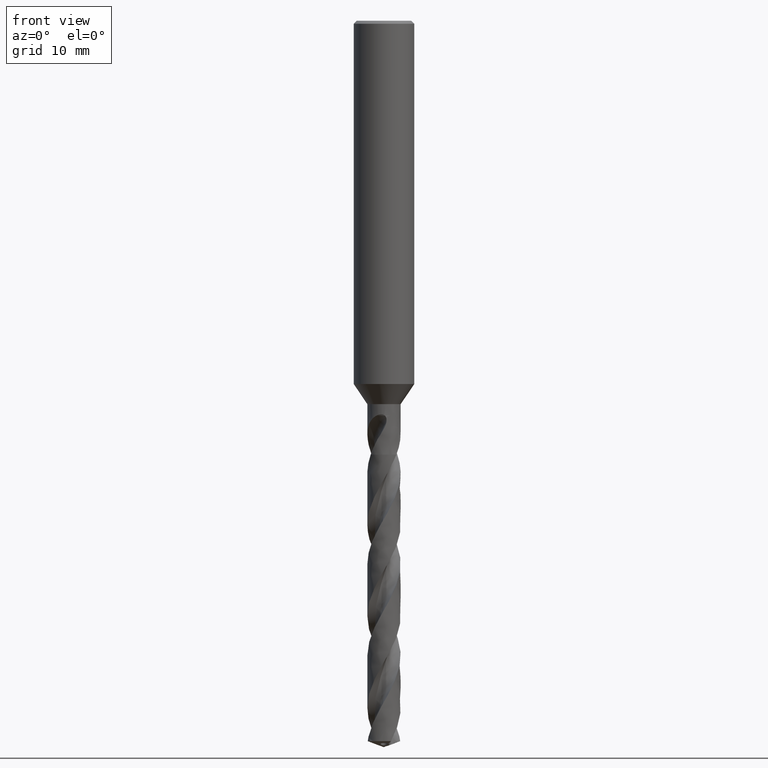
[diagram: clean part render]
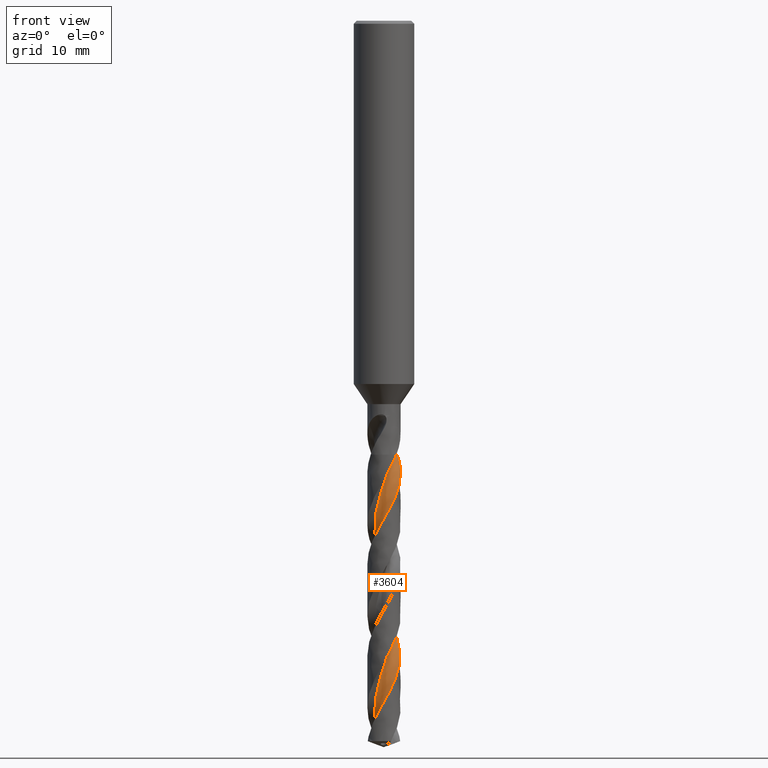
[diagram: same view with one face highlighted and labeled with its STEP entity id]
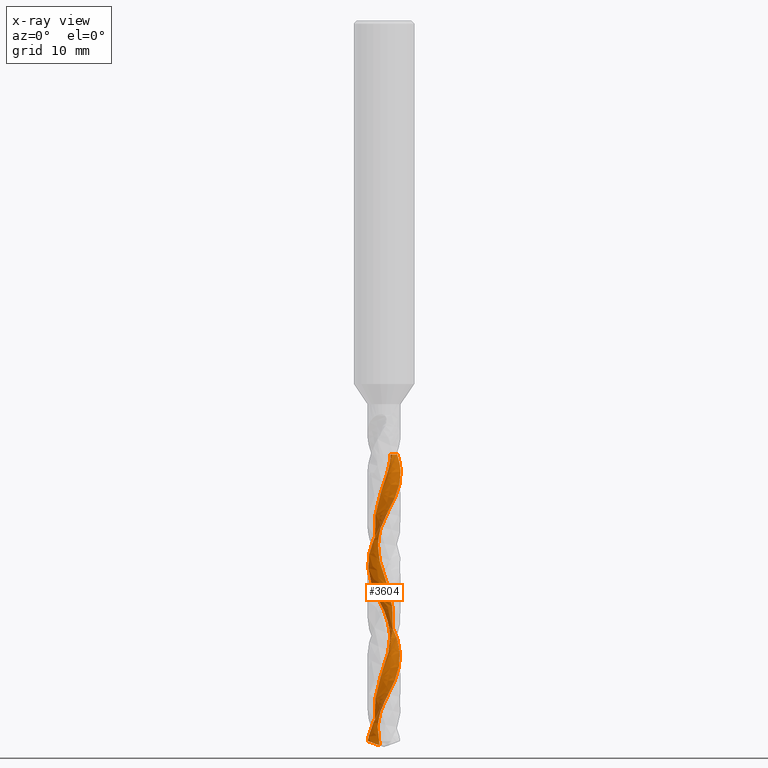
[diagram: x-ray of the same camera — body ghosted, the highlighted face saturated]
A machine part, front view. The second image highlights one B-rep face of the part: STEP entity #3604.
The next image is the same camera in x-ray: the body ghosted, the highlighted face saturated — about 0% of this face is hidden behind the body in this view.
In plain terms, the highlighted face is a freeform B-spline surface patch.
Its self-contained STEP definition (entity closure, byte-faithful):
#1348 = VERTEX_POINT('', #1349);
#1349 = CARTESIAN_POINT('', (0.829180259632273, -0.553275952861656, -43.));
#1355 = EDGE_CURVE('', #1348, #1356, #1358, .T.);
#1356 = VERTEX_POINT('', #1357);
#1357 = CARTESIAN_POINT('', (1.3185838363879, 0.991885409922217, -43.));
#1358 = B_SPLINE_CURVE_WITH_KNOTS('', 3, (#1359, #1360, #1361, #1362, #1363, #1364, #1365, #1366, #1367, #1368, #1369, #1370, #1371, #1372, #1373, #1374, #1375, #1376, #1377, #1378, #1379, #1380, #1381, #1382, #1383, #1384, #1385, #1386, #1387, #1388, #1389, #1390, #1391, #1392, #1393, #1394, #1395, #1396, #1397, #1398, #1399, #1400, #1401, #1402, #1403, #1404, #1405, #1406, #1407), .UNSPECIFIED., .F., .U., (4, 3, 3, 3, 3, 3, 3, 3, 3, 3, 3, 3, 3, 3, 3, 3, 4), (0., 0.132436671795952, 0.264567769653344, 0.396403688599869, 0.527951807074838, 0.659216781824874, 0.790200732974494, 0.920903334902426, 0.946814820727353, 0.972749325510495, 1.1051521852772, 1.2372507586965, 1.36905509483034, 1.50057226420215, 1.63180664071957, 1.76276007590527, 1.88921311723889), .UNSPECIFIED.);
#1359 = CARTESIAN_POINT('', (0.82918025963227, -0.553275952861654, -43.));
#1360 = CARTESIAN_POINT('', (0.802836021612964, -0.517852636395694, -43.));
#1361 = CARTESIAN_POINT('', (0.778792383202779, -0.480597916187412, -43.));
#1362 = CARTESIAN_POINT('', (0.757365203415265, -0.44200120398781, -43.));
#1363 = CARTESIAN_POINT('', (0.735987463013618, -0.403493546799952, -43.));
#1364 = CARTESIAN_POINT('', (0.717120781840928, -0.36348207327999, -43.));
#1365 = CARTESIAN_POINT('', (0.701011871024247, -0.322489995520038, -43.));
#1366 = CARTESIAN_POINT('', (0.684938947275161, -0.281589493453194, -43.));
#1367 = CARTESIAN_POINT('', (0.671541609168134, -0.239535104194897, -43.));
#1368 = CARTESIAN_POINT('', (0.660994268353275, -0.196874307801732, -43.));
#1369 = CARTESIAN_POINT('', (0.650469952596264, -0.154306640788004, -43.));
#1370 = CARTESIAN_POINT('', (0.642737631307406, -0.110951110443131, -43.));
#1371 = CARTESIAN_POINT('', (0.637897529195854, -0.0673696819592608, -43.));
#1372 = CARTESIAN_POINT('', (0.633067844903704, -0.0238820579945421, -43.));
#1373 = CARTESIAN_POINT('', (0.631097089867776, 0.0200177708354474, -43.));
#1374 = CARTESIAN_POINT('', (0.632010699105694, 0.0637632232461724, -43.));
#1375 = CARTESIAN_POINT('', (0.632922352408619, 0.107415021545725, -43.));
#1376 = CARTESIAN_POINT('', (0.636709889434394, 0.151100293384398, -43.));
#1377 = CARTESIAN_POINT('', (0.643324635769301, 0.194257630390456, -43.));
#1378 = CARTESIAN_POINT('', (0.649925173846505, 0.237322266855185, -43.));
#1379 = CARTESIAN_POINT('', (0.659368920301829, 0.28004512341598, -43.));
#1380 = CARTESIAN_POINT('', (0.671535030761095, 0.321879508472305, -43.));
#1381 = CARTESIAN_POINT('', (0.673946933768838, 0.330173077685099, -43.));
#1382 = CARTESIAN_POINT('', (0.676466611394713, 0.338436060591907, -43.));
#1383 = CARTESIAN_POINT('', (0.679092792539193, 0.346664288773145, -43.));
#1384 = CARTESIAN_POINT('', (0.681721306701334, 0.35489982665642, -43.));
#1385 = CARTESIAN_POINT('', (0.684456956317422, 0.363101934730349, -43.));
#1386 = CARTESIAN_POINT('', (0.687298358883978, 0.371266467930857, -43.));
#1387 = CARTESIAN_POINT('', (0.701804509231026, 0.412948680621886, -43.));
#1388 = CARTESIAN_POINT('', (0.719116648883244, 0.453756621093082, -43.));
#1389 = CARTESIAN_POINT('', (0.739007465624622, 0.493154472076, -43.));
#1390 = CARTESIAN_POINT('', (0.758852569577139, 0.532461779484616, -43.));
#1391 = CARTESIAN_POINT('', (0.781351015836192, 0.570536941019302, -43.));
#1392 = CARTESIAN_POINT('', (0.806208746658359, 0.606882309155756, -43.));
#1393 = CARTESIAN_POINT('', (0.8310111091972, 0.643146721365262, -43.));
#1394 = CARTESIAN_POINT('', (0.858269905913629, 0.677846533648652, -43.));
#1395 = CARTESIAN_POINT('', (0.887630440861141, 0.710530226340956, -43.));
#1396 = CARTESIAN_POINT('', (0.916927006974247, 0.743142709917711, -43.));
#1397 = CARTESIAN_POINT('', (0.948442776387282, 0.773888875505254, -43.));
#1398 = CARTESIAN_POINT('', (0.981769439948947, 0.802370384715815, -43.));
#1399 = CARTESIAN_POINT('', (1.01502444334365, 0.83079065198112, -43.));
#1400 = CARTESIAN_POINT('', (1.05022567623711, 0.85707837011462, -43.));
#1401 = CARTESIAN_POINT('', (1.08691903452107, 0.880894421425823, -43.));
#1402 = CARTESIAN_POINT('', (1.12353384112357, 0.904659488281966, -43.));
#1403 = CARTESIAN_POINT('', (1.16179130204582, 0.926065366378712, -43.));
#1404 = CARTESIAN_POINT('', (1.20119999114986, 0.944837092146886, -43.));
#1405 = CARTESIAN_POINT('', (1.23925434676956, 0.96296370189256, -43.));
#1406 = CARTESIAN_POINT('', (1.27853931045707, 0.978709010084265, -43.));
#1407 = CARTESIAN_POINT('', (1.31858384755338, 0.991885375989, -43.));
#1767 = VERTEX_POINT('', #1768);
#1768 = CARTESIAN_POINT('', (-0.460167977170199, 0.873702665830549, -71.6405877483979));
#1793 = EDGE_CURVE('', #1767, #1348, #1794, .T.);
#1794 = (
   BOUNDED_CURVE ()
   B_SPLINE_CURVE (3, (#1795, #1796, #1797, #1798, #1799, #1800, #1801, #1802, #1803, #1804, #1805, #1806, #1807, #1808, #1809, #1810, #1811, #1812, #1813, #1814, #1815, #1816, #1817, #1818, #1819, #1820, #1821, #1822, #1823, #1824, #1825, #1826, #1827, #1828, #1829, #1830, #1831, #1832, #1833, #1834, #1835, #1836, #1837, #1838, #1839, #1840, #1841, #1842, #1843, #1844, #1845, #1846, #1847, #1848, #1849, #1850, #1851, #1852, #1853, #1854, #1855, #1856, #1857, #1858, #1859, #1860, #1861, #1862, #1863, #1864, #1865, #1866, #1867, #1868, #1869, #1870, #1871, #1872, #1873, #1874, #1875, #1876, #1877, #1878, #1879, #1880, #1881, #1882, #1883, #1884, #1885, #1886, #1887, #1888, #1889, #1890, #1891, #1892), .UNSPECIFIED., .F., .U.)
   B_SPLINE_CURVE_WITH_KNOTS ((4, 1, 1, 1, 1, 1, 1, 1, 1, 1, 1, 1, 1, 1, 1, 1, 1, 1, 1, 1, 1, 1, 1, 1, 1, 1, 1, 1, 1, 1, 1, 1, 1, 1, 1, 1, 1, 1, 1, 1, 1, 1, 1, 1, 1, 1, 1, 1, 1, 1, 1, 1, 1, 1, 1, 1, 1, 1, 1, 1, 1, 1, 1, 1, 1, 1, 1, 1, 1, 1, 1, 1, 1, 1, 1, 1, 1, 1, 1, 1, 1, 1, 1, 1, 1, 1, 1, 1, 1, 1, 1, 1, 1, 1, 1, 4), (0.409412251602091, 0.606422018348624, 0.909633027522936, 1.21284403669725, 1.51605504587156, 1.81926605504587, 2.12247706422018, 2.4256880733945, 2.72889908256881, 3.03211009174312, 3.33532110091743, 3.63853211009174, 3.94174311926605, 4.24495412844037, 4.54816513761468, 4.85137614678899, 5.1545871559633, 5.45779816513761, 5.76100917431193, 6.06422018348624, 6.36743119266055, 6.67064220183486, 6.97385321100917, 7.27706422018349, 7.5802752293578, 7.88348623853211, 8.18669724770642, 8.48990825688073, 8.79311926605504, 9.09633027522936, 9.39954128440367, 9.70275229357798, 10.0059633027523, 10.3091743119266, 10.6123853211009, 10.9155963302752, 11.2188073394495, 11.5220183486239, 11.8252293577982, 12.1284403669725, 12.4316513761468, 12.7348623853211, 13.0380733944954, 13.3412844036697, 13.644495412844, 13.9477064220183, 14.2509174311927, 14.554128440367, 14.8573394495413, 15.1605504587156, 15.4637614678899, 15.7669724770642, 16.0701834862385, 16.3733944954128, 16.6766055045872, 16.9798165137615, 17.2830275229358, 17.5862385321101, 17.8894495412844, 18.1926605504587, 18.495871559633, 18.7990825688073, 19.1022935779816, 19.405504587156, 19.7087155963303, 20.0119266055046, 20.3151376146789, 20.6183486238532, 20.9215596330275, 21.2247706422018, 21.5279816513761, 21.8311926605505, 22.1344036697248, 22.4376146788991, 22.7408256880734, 23.0440366972477, 23.347247706422, 23.6504587155963, 23.9536697247706, 24.256880733945, 24.5600917431193, 24.8633027522936, 25.1665137614679, 25.4697247706422, 25.7729357798165, 26.0761467889908, 26.3793577981651, 26.6825688073394, 26.9857798165138, 27.2889908256881, 27.5922018348624, 27.8954128440367, 28.198623853211, 28.5018348623853, 28.8050458715596, 29.05), .UNSPECIFIED.)
   CURVE ()
   GEOMETRIC_REPRESENTATION_ITEM ()
   RATIONAL_B_SPLINE_CURVE ((1., 1., 1., 1., 1., 1., 1., 0.999999999999999, 1., 1., 1., 1., 1., 1., 1., 1., 1., 1., 1., 1., 1., 1., 1., 1., 1., 1., 1., 1., 1., 1., 1., 1., 1., 1., 1., 1., 1., 1., 1., 1., 1., 1., 1., 1., 1., 1., 1., 1., 1., 1., 1., 1., 1., 1., 1., 1., 1., 1., 1., 1., 1., 1., 1., 1., 1., 1., 1., 1., 1., 1., 1., 1., 1., 1., 1., 1., 1., 1., 1., 1., 1., 1., 1., 1., 1., 1., 1., 1., 1., 1., 1., 1., 1., 1., 1., 1., 1., 1.))
   REPRESENTATION_ITEM ('')
);
#1795 = CARTESIAN_POINT('', (-0.460167977170204, 0.873702665830547, -71.6405877483979));
#1796 = CARTESIAN_POINT('', (-0.479768958035445, 0.862708134016507, -71.5749178261491));
#1797 = CARTESIAN_POINT('', (-0.528545396269872, 0.833129492910081, -71.4081775675088));
#1798 = CARTESIAN_POINT('', (-0.602390254267353, 0.779123860898762, -71.1403669724771));
#1799 = CARTESIAN_POINT('', (-0.67895390611728, 0.709778316945088, -70.8371559633027));
#1800 = CARTESIAN_POINT('', (-0.7476821196444, 0.633025856163638, -70.5339449541284));
#1801 = CARTESIAN_POINT('', (-0.807871409892772, 0.549737804189695, -70.2307339449541));
#1802 = CARTESIAN_POINT('', (-0.85891335408958, 0.460850430236669, -69.9275229357798));
#1803 = CARTESIAN_POINT('', (-0.900300926428717, 0.367355294426215, -69.6243119266055));
#1804 = CARTESIAN_POINT('', (-0.931633221581069, 0.270288252681659, -69.3211009174312));
#1805 = CARTESIAN_POINT('', (-0.95261917452327, 0.17071827857526, -69.0178899082569));
#1806 = CARTESIAN_POINT('', (-0.963080070926032, 0.0697359412322251, -68.7146788990826));
#1807 = CARTESIAN_POINT('', (-0.962950875696523, -0.0315582648006548, -68.4114678899083));
#1808 = CARTESIAN_POINT('', (-0.952280360325136, -0.132065635948999, -68.1082568807339));
#1809 = CARTESIAN_POINT('', (-0.931230037858026, -0.230700895367101, -67.8050458715596));
#1810 = CARTESIAN_POINT('', (-0.900071922215615, -0.32640362953778, -67.5018348623853));
#1811 = CARTESIAN_POINT('', (-0.859185141610672, -0.418149408124337, -67.198623853211));
#1812 = CARTESIAN_POINT('', (-0.809051447032126, -0.504960473889201, -66.8954128440367));
#1813 = CARTESIAN_POINT('', (-0.750249667873866, -0.585915894391784, -66.5922018348624));
#1814 = CARTESIAN_POINT('', (-0.683449177204971, -0.660161073298076, -66.2889908256881));
#1815 = CARTESIAN_POINT('', (-0.609402438931687, -0.726916526197662, -65.9857798165138));
#1816 = CARTESIAN_POINT('', (-0.528936718065591, -0.785485833810332, -65.6825688073394));
#1817 = CARTESIAN_POINT('', (-0.442945043412801, -0.835262694274352, -65.3793577981651));
#1818 = CARTESIAN_POINT('', (-0.352376519159608, -0.875737005753594, -65.0761467889908));
#1819 = CARTESIAN_POINT('', (-0.258226087986265, -0.906499920781684, -64.7729357798165));
#1820 = CARTESIAN_POINT('', (-0.161523853438762, -0.92724782447434, -64.4697247706422));
#1821 = CARTESIAN_POINT('', (-0.0633240732843292, -0.93778519987791, -64.1665137614679));
#1822 = CARTESIAN_POINT('', (0.0353060615628331, -0.938026355171056, -63.8633027522936));
#1823 = CARTESIAN_POINT('', (0.133297746254923, -0.927995999083736, -63.5600917431193));
#1824 = CARTESIAN_POINT('', (0.229591862535714, -0.907828662628043, -63.256880733945));
#1825 = CARTESIAN_POINT('', (0.323150144380111, -0.877766976933912, -62.9536697247706));
#1826 = CARTESIAN_POINT('', (0.412966094335349, -0.838158828534926, -62.6504587155963));
#1827 = CARTESIAN_POINT('', (0.498075539067802, -0.789453424743536, -62.347247706422));
#1828 = CARTESIAN_POINT('', (0.577566716634388, -0.732196312681557, -62.0440366972477));
#1829 = CARTESIAN_POINT('', (0.650589793067336, -0.667023405986104, -61.7408256880734));
#1830 = CARTESIAN_POINT('', (0.716365711931846, -0.594654083093, -61.4376146788991));
#1831 = CARTESIAN_POINT('', (0.774194287524887, -0.515883430215067, -61.1344036697248));
#1832 = CARTESIAN_POINT('', (0.823461460258815, -0.431573710594313, -60.8311926605505));
#1833 = CARTESIAN_POINT('', (0.863645641435657, -0.342645149234961, -60.5279816513761));
#1834 = CARTESIAN_POINT('', (0.894323083980611, -0.250066129046871, -60.2247706422018));
#1835 = CARTESIAN_POINT('', (0.915172225673059, -0.15484290008364, -59.9215596330275));
#1836 = CARTESIAN_POINT('', (0.925976961892115, -0.0580089082928288, -59.6183486238532));
#1837 = CARTESIAN_POINT('', (0.926628815778046, 0.0393861461359685, -59.3151376146789));
#1838 = CARTESIAN_POINT('', (0.917127984894501, 0.136287408169337, -59.0119266055046));
#1839 = CARTESIAN_POINT('', (0.897583254850067, 0.23164601096995, -58.7087155963303));
#1840 = CARTESIAN_POINT('', (0.868210781790511, 0.324430148157822, -58.405504587156));
#1841 = CARTESIAN_POINT('', (0.829331757093975, 0.413635961691763, -58.1022935779817));
#1842 = CARTESIAN_POINT('', (0.781368978879476, 0.498298133714437, -57.7990825688073));
#1843 = CARTESIAN_POINT('', (0.724842365965076, 0.577500073754416, -57.495871559633));
#1844 = CARTESIAN_POINT('', (0.660363460579199, 0.650383596803821, -57.1926605504587));
#1845 = CARTESIAN_POINT('', (0.5886289763335, 0.716157992949726, -56.8894495412844));
#1846 = CARTESIAN_POINT('', (0.51041345760932, 0.774108395381614, -56.5862385321101));
#1847 = CARTESIAN_POINT('', (0.42656112549884, 0.823603360665574, -56.2830275229358));
#1848 = CARTESIAN_POINT('', (0.337976993688683, 0.864101583101026, -55.9798165137615));
#1849 = CARTESIAN_POINT('', (0.245617345097996, 0.895157673680251, -55.6766055045872));
#1850 = CARTESIAN_POINT('', (0.150479666611716, 0.916426943571615, -55.3733944954128));
#1851 = CARTESIAN_POINT('', (0.0535921448189882, 0.927669142053053, -55.0701834862385));
#1852 = CARTESIAN_POINT('', (-0.0439971697791126, 0.928751109336794, -54.7669724770642));
#1853 = CARTESIAN_POINT('', (-0.141231419134913, 0.919648315648127, -54.4637614678899));
#1854 = CARTESIAN_POINT('', (-0.237056101237856, 0.900445269144423, -54.1605504587156));
#1855 = CARTESIAN_POINT('', (-0.330430226286838, 0.871334786677433, -53.8573394495413));
#1856 = CARTESIAN_POINT('', (-0.420337350683423, 0.832616132900946, -53.554128440367));
#1857 = CARTESIAN_POINT('', (-0.505796375080673, 0.784692044695845, -53.2509174311927));
#1858 = CARTESIAN_POINT('', (-0.585871994859674, 0.7280646692132, -52.9477064220183));
#1859 = CARTESIAN_POINT('', (-0.659684694659335, 0.663330454912783, -52.644495412844));
#1860 = CARTESIAN_POINT('', (-0.726420182927407, 0.591174045690019, -52.3412844036697));
#1861 = CARTESIAN_POINT('', (-0.78533816785247, 0.512361238433496, -52.0380733944954));
#1862 = CARTESIAN_POINT('', (-0.835780382429576, 0.427731074035362, -51.7348623853211));
#1863 = CARTESIAN_POINT('', (-0.877177773746974, 0.338187140892086, -51.4316513761468));
#1864 = CARTESIAN_POINT('', (-0.909056779790668, 0.24468817819139, -51.1284403669725));
#1865 = CARTESIAN_POINT('', (-0.931044626070041, 0.148238073699391, -50.8252293577982));
#1866 = CARTESIAN_POINT('', (-0.942873584087318, 0.0498753572629149, -50.5220183486238));
#1867 = CARTESIAN_POINT('', (-0.944384144013864, -0.0493377032422892, -50.2188073394495));
#1868 = CARTESIAN_POINT('', (-0.935527064798827, -0.148326292314872, -49.9155963302752));
#1869 = CARTESIAN_POINT('', (-0.916364276216365, -0.246014409002367, -49.6123853211009));
#1870 = CARTESIAN_POINT('', (-0.887068618947806, -0.34133628402093, -49.3091743119266));
#1871 = CARTESIAN_POINT('', (-0.847922420582062, -0.433247733910298, -49.0059633027523));
#1872 = CARTESIAN_POINT('', (-0.799314917286527, -0.520737334408191, -48.702752293578));
#1873 = CARTESIAN_POINT('', (-0.741738542734341, -0.602837296507505, -48.3995412844037));
#1874 = CARTESIAN_POINT('', (-0.675784117556482, -0.678633931117656, -48.0963302752294));
#1875 = CARTESIAN_POINT('', (-0.602134983997397, -0.747277591873807, -47.793119266055));
#1876 = CARTESIAN_POINT('', (-0.521560141492957, -0.807991990387507, -47.4899082568807));
#1877 = CARTESIAN_POINT('', (-0.434906449384044, -0.860082784103287, -47.1866972477064));
#1878 = CARTESIAN_POINT('', (-0.343089973056632, -0.902945343742385, -46.8834862385321));
#1879 = CARTESIAN_POINT('', (-0.247086558473289, -0.936071615483457, -46.5802752293578));
#1880 = CARTESIAN_POINT('', (-0.147921730531391, -0.959056000734835, -46.2770642201835));
#1881 = CARTESIAN_POINT('', (-0.0466600105570643, -0.971600190024035, -45.9738532110092));
#1882 = CARTESIAN_POINT('', (0.0556062166472919, -0.973516882778617, -45.6706422018349));
#1883 = CARTESIAN_POINT('', (0.157768256863675, -0.964732392187041, -45.3674311926606));
#1884 = CARTESIAN_POINT('', (0.258712650134875, -0.945287935357, -45.0642201834862));
#1885 = CARTESIAN_POINT('', (0.357333753819492, -0.915340206621238, -44.7610091743119));
#1886 = CARTESIAN_POINT('', (0.452542872622421, -0.875158912004734, -44.4577981651376));
#1887 = CARTESIAN_POINT('', (0.543290118540621, -0.825129898163887, -44.1545871559633));
#1888 = CARTESIAN_POINT('', (0.628538019809997, -0.765731682480286, -43.851376146789));
#1889 = CARTESIAN_POINT('', (0.707413880891258, -0.697605617326759, -43.5481651376147));
#1890 = CARTESIAN_POINT('', (0.774128102393033, -0.626159913068782, -43.264373088685));
#1891 = CARTESIAN_POINT('', (0.813163031636974, -0.576467744733619, -43.0816513761468));
#1892 = CARTESIAN_POINT('', (0.829180259632273, -0.553275952861656, -43.));
#3459 = EDGE_CURVE('', #1356, #3460, #3462, .T.);
#3460 = VERTEX_POINT('', #3461);
#3461 = CARTESIAN_POINT('', (1.64763570035396, 0.0882983517349156, -44.6911895941619));
#3462 = B_SPLINE_CURVE_WITH_KNOTS('', 3, (#3463, #3464, #3465, #3466, #3467, #3468, #3469, #3470, #3471, #3472, #3473, #3474, #3475, #3476, #3477, #3478, #3479, #3480, #3481, #3482, #3483, #3484, #3485, #3486, #3487), .UNSPECIFIED., .F., .U., (4, 3, 3, 3, 3, 3, 3, 3, 4), (0.864765393384063, 1.0069943865074, 1.13833202133781, 1.43366930436383, 1.63059464878867, 1.9258207172984, 2.22096746382696, 2.51603991256401, 2.8171376991075), .UNSPECIFIED.);
#3463 = CARTESIAN_POINT('', (1.3185838363879, 0.991885409922217, -43.));
#3464 = CARTESIAN_POINT('', (1.33277928829439, 0.973014385863514, -43.0411102161542));
#3465 = CARTESIAN_POINT('', (1.34660836989325, 0.953786122521775, -43.0821898174932));
#3466 = CARTESIAN_POINT('', (1.36003204953577, 0.93424452058102, -43.1232459606942));
#3467 = CARTESIAN_POINT('', (1.37242779456815, 0.916199340598129, -43.1611581797493));
#3468 = CARTESIAN_POINT('', (1.38447971516426, 0.897884129745902, -43.1990567922596));
#3469 = CARTESIAN_POINT('', (1.39615568310188, 0.879345954981504, -43.2369596578284));
#3470 = CARTESIAN_POINT('', (1.42241128494705, 0.837659395190405, -43.3221913536059));
#3471 = CARTESIAN_POINT('', (1.44676341902571, 0.794854817867404, -43.4074908995853));
#3472 = CARTESIAN_POINT('', (1.4691492788128, 0.751066173225656, -43.4927727601572));
#3473 = CARTESIAN_POINT('', (1.48407574899514, 0.721868728732292, -43.5496371004607));
#3474 = CARTESIAN_POINT('', (1.49813572461523, 0.692217894603121, -43.6065045059759));
#3475 = CARTESIAN_POINT('', (1.51130143201499, 0.662169148775027, -43.6633602928232));
#3476 = CARTESIAN_POINT('', (1.53103916585586, 0.617120741621614, -43.7485972158408));
#3477 = CARTESIAN_POINT('', (1.54876999737547, 0.571165922163119, -43.8338481461793));
#3478 = CARTESIAN_POINT('', (1.56440539378621, 0.524533853905101, -43.9190846099657));
#3479 = CARTESIAN_POINT('', (1.58003658924469, 0.477914314852443, -44.0042981722339));
#3480 = CARTESIAN_POINT('', (1.59358362243206, 0.430590782138734, -44.0895371896672));
#3481 = CARTESIAN_POINT('', (1.60498888979065, 0.382767114115614, -44.1747538754786));
#3482 = CARTESIAN_POINT('', (1.61639128608194, 0.334955484825623, -44.259949109549));
#3483 = CARTESIAN_POINT('', (1.62565817065335, 0.286620739214663, -44.3451648550396));
#3484 = CARTESIAN_POINT('', (1.63274747790545, 0.237982506485298, -44.4303602685576));
#3485 = CARTESIAN_POINT('', (1.63998154781225, 0.1883510879002, -44.5172953604096));
#3486 = CARTESIAN_POINT('', (1.64495182838242, 0.138379051868115, -44.6042526056075));
#3487 = CARTESIAN_POINT('', (1.64763570035396, 0.0882983517349171, -44.6911895941619));
#3604 = ADVANCED_FACE('', (#3605), #3815, .T.);
#3605 = FACE_OUTER_BOUND('', #3606, .T.);
#3606 = EDGE_LOOP('', (#3607, #3608, #3609, #3669, #3708, #3720, #3814));
#3607 = ORIENTED_EDGE('', *, *, #1355, .F.);
#3608 = ORIENTED_EDGE('', *, *, #1793, .F.);
#3609 = ORIENTED_EDGE('', *, *, #3610, .T.);
#3610 = EDGE_CURVE('', #1767, #3611, #3613, .T.);
#3611 = VERTEX_POINT('', #3612);
#3612 = CARTESIAN_POINT('', (-0.798227980687879, 4.43981593726212E-15, -71.7094687748712));
#3613 = B_SPLINE_CURVE_WITH_KNOTS('', 3, (#3614, #3615, #3616, #3617, #3618, #3619, #3620, #3621, #3622, #3623, #3624, #3625, #3626, #3627, #3628, #3629, #3630, #3631, #3632, #3633, #3634, #3635, #3636, #3637, #3638, #3639, #3640, #3641, #3642, #3643, #3644, #3645, #3646, #3647, #3648, #3649, #3650, #3651, #3652, #3653, #3654, #3655, #3656, #3657, #3658, #3659, #3660, #3661, #3662, #3663, #3664, #3665, #3666, #3667, #3668), .UNSPECIFIED., .F., .U., (4, 3, 3, 3, 3, 3, 3, 3, 3, 3, 3, 3, 3, 3, 3, 3, 3, 3, 4), (0., 0.0877431230360987, 0.175314875079662, 0.233583211124527, 0.29176057311188, 0.349841732593229, 0.407835957129215, 0.465772192982732, 0.523698255559158, 0.581670154467008, 0.639733838882615, 0.697909409003426, 0.756187747286239, 0.81453977218011, 0.872929982677379, 0.931326535050979, 0.957277925888821, 0.974597759007491, 1.01018308791209), .UNSPECIFIED.);
#3614 = CARTESIAN_POINT('', (-0.460167977170203, 0.873702665830547, -71.6405877483979));
#3615 = CARTESIAN_POINT('', (-0.453209041568726, 0.847027974264914, -71.6503582371079));
#3616 = CARTESIAN_POINT('', (-0.447762997142418, 0.819864279092399, -71.6600105302549));
#3617 = CARTESIAN_POINT('', (-0.443932101807683, 0.792431860081175, -71.6694028160568));
#3618 = CARTESIAN_POINT('', (-0.440108688590213, 0.765053019295924, -71.6787767577962));
#3619 = CARTESIAN_POINT('', (-0.437882939948483, 0.737319283087197, -71.6879220345351));
#3620 = CARTESIAN_POINT('', (-0.437324468923192, 0.709471820493012, -71.6966568575034));
#3621 = CARTESIAN_POINT('', (-0.436952874469346, 0.690942725544362, -71.702468818417));
#3622 = CARTESIAN_POINT('', (-0.437317453396552, 0.672328665422895, -71.7081093024598));
#3623 = CARTESIAN_POINT('', (-0.438427542395189, 0.653705930345905, -71.7135135389815));
#3624 = CARTESIAN_POINT('', (-0.439535898217504, 0.635112270850731, -71.7189093378962));
#3625 = CARTESIAN_POINT('', (-0.441389462064177, 0.616479992648985, -71.7240781893347));
#3626 = CARTESIAN_POINT('', (-0.44398550576773, 0.597889155858456, -71.728947338798));
#3627 = CARTESIAN_POINT('', (-0.446577256634664, 0.579329061009927, -71.7338084366005));
#3628 = CARTESIAN_POINT('', (-0.449913697936788, 0.560778799280743, -71.7383787345423));
#3629 = CARTESIAN_POINT('', (-0.453976735626076, 0.542321826915667, -71.7425806937328));
#3630 = CARTESIAN_POINT('', (-0.458033691825898, 0.523892480649974, -71.7467763634984));
#3631 = CARTESIAN_POINT('', (-0.462822506412581, 0.505523481387754, -71.7506116606735));
#3632 = CARTESIAN_POINT('', (-0.468306443927722, 0.487300547494393, -71.7540108446665));
#3633 = CARTESIAN_POINT('', (-0.473784898029407, 0.469095834793498, -71.7574066298003));
#3634 = CARTESIAN_POINT('', (-0.479967204736844, 0.451003647130526, -71.7603726277767));
#3635 = CARTESIAN_POINT('', (-0.486796170240328, 0.433109253762101, -71.7628449337185));
#3636 = CARTESIAN_POINT('', (-0.493623936615886, 0.415218002548486, -71.7653168055373));
#3637 = CARTESIAN_POINT('', (-0.501110529954069, 0.397491621860755, -71.7672990112164));
#3638 = CARTESIAN_POINT('', (-0.509179965729062, 0.380010151633776, -71.7687508441727));
#3639 = CARTESIAN_POINT('', (-0.517255786770309, 0.362514848488979, -71.7702038259503));
#3640 = CARTESIAN_POINT('', (-0.5259293154913, 0.345233662010421, -71.7711278925418));
#3641 = CARTESIAN_POINT('', (-0.535112183232031, 0.328235376819291, -71.7715137866748));
#3642 = CARTESIAN_POINT('', (-0.544309589985527, 0.311210178653657, -71.7719002917847));
#3643 = CARTESIAN_POINT('', (-0.554032511037362, 0.294440598392899, -71.7717478531461));
#3644 = CARTESIAN_POINT('', (-0.564190098257843, 0.277979255590061, -71.7710795233217));
#3645 = CARTESIAN_POINT('', (-0.574367258621516, 0.261486192634314, -71.7704099056605));
#3646 = CARTESIAN_POINT('', (-0.584994989386634, 0.245278412642615, -71.7692221821208));
#3647 = CARTESIAN_POINT('', (-0.595989743050698, 0.229390934289224, -71.7675646146321));
#3648 = CARTESIAN_POINT('', (-0.607003919139388, 0.21347539042748, -71.7659041190215));
#3649 = CARTESIAN_POINT('', (-0.618399513802845, 0.197861624362352, -71.7637709467013));
#3650 = CARTESIAN_POINT('', (-0.630106494538308, 0.182569465976285, -71.7612272582464));
#3651 = CARTESIAN_POINT('', (-0.641828277475782, 0.167257972321567, -71.7586803535745));
#3652 = CARTESIAN_POINT('', (-0.653873722073001, 0.152253523197094, -71.7557200509541));
#3653 = CARTESIAN_POINT('', (-0.666187995459697, 0.137565342691547, -71.7524117612186));
#3654 = CARTESIAN_POINT('', (-0.678510327314982, 0.122867550231035, -71.7491013065362));
#3655 = CARTESIAN_POINT('', (-0.691111608534428, 0.108474665049404, -71.7454402006151));
#3656 = CARTESIAN_POINT('', (-0.703950645111659, 0.0943899786644929, -71.7414899063254));
#3657 = CARTESIAN_POINT('', (-0.716791076162065, 0.0803037625139167, -71.7375391829863));
#3658 = CARTESIAN_POINT('', (-0.729877541540297, 0.0665167930942402, -71.7332968854506));
#3659 = CARTESIAN_POINT('', (-0.743179549465573, 0.0530299967254459, -71.7288170105901));
#3660 = CARTESIAN_POINT('', (-0.749090953351002, 0.047036472972917, -71.7268261570434));
#3661 = CARTESIAN_POINT('', (-0.755046042197896, 0.041101183742739, -71.7247879475267));
#3662 = CARTESIAN_POINT('', (-0.761042656175215, 0.0352241865641046, -71.722706590834));
#3663 = CARTESIAN_POINT('', (-0.76504476743057, 0.0313019069834506, -71.7213175034126));
#3664 = CARTESIAN_POINT('', (-0.769065589963775, 0.0274053853454102, -71.7199091184746));
#3665 = CARTESIAN_POINT('', (-0.773104545275914, 0.0235346436951766, -71.7184826071578));
#3666 = CARTESIAN_POINT('', (-0.781402982808694, 0.0155818179500005, -71.7155516970246));
#3667 = CARTESIAN_POINT('', (-0.789778944876454, 0.00773683985570473, -71.7125439724148));
#3668 = CARTESIAN_POINT('', (-0.798227980687875, 4.43114231988223E-15, -71.7094687748712));
#3669 = ORIENTED_EDGE('', *, *, #3670, .T.);
#3670 = EDGE_CURVE('', #3611, #3671, #3673, .T.);
#3671 = VERTEX_POINT('', #3672);
#3672 = CARTESIAN_POINT('', (-1.6077410614341, -0.371037301869694, -71.3994491134608));
#3673 = B_SPLINE_CURVE_WITH_KNOTS('', 3, (#3674, #3675, #3676, #3677, #3678, #3679, #3680, #3681, #3682, #3683, #3684, #3685, #3686, #3687, #3688, #3689, #3690, #3691, #3692, #3693, #3694, #3695, #3696, #3697, #3698, #3699, #3700, #3701, #3702, #3703, #3704, #3705, #3706, #3707), .UNSPECIFIED., .F., .U., (4, 3, 3, 3, 3, 3, 3, 3, 3, 3, 3, 4), (0., 0.0887453765748617, 0.177096745266074, 0.265143009176432, 0.352952092088308, 0.440573386346795, 0.528041963110454, 0.615382345278774, 0.702611383636432, 0.789740310114097, 0.87677615660102, 0.958361314538248), .UNSPECIFIED.);
#3674 = CARTESIAN_POINT('', (-0.798227980687875, 4.43114231988223E-15, -71.7094687748712));
#3675 = CARTESIAN_POINT('', (-0.81929882330364, -0.019294714637429, -71.7017996153481));
#3676 = CARTESIAN_POINT('', (-0.840836782732008, -0.0379297470566917, -71.6937081541221));
#3677 = CARTESIAN_POINT('', (-0.862787703252965, -0.0558951339531108, -71.6853126558514));
#3678 = CARTESIAN_POINT('', (-0.884641167026625, -0.0737807589019986, -71.6769544315508));
#3679 = CARTESIAN_POINT('', (-0.906922389729597, -0.0910173488165858, -71.6682874081766));
#3680 = CARTESIAN_POINT('', (-0.929589606928172, -0.107585873254919, -71.6593986155371));
#3681 = CARTESIAN_POINT('', (-0.952178547169202, -0.124097181420401, -71.6505405186658));
#3682 = CARTESIAN_POINT('', (-0.975167993733036, -0.139957287494204, -71.6414550788582));
#3683 = CARTESIAN_POINT('', (-0.998521096597298, -0.155138462077304, -71.6322077049813));
#3684 = CARTESIAN_POINT('', (-1.02181129034982, -0.170278741272163, -71.6229852418873));
#3685 = CARTESIAN_POINT('', (-1.04548016151352, -0.184754573090028, -71.613594711642));
#3686 = CARTESIAN_POINT('', (-1.06949143736022, -0.198530523804073, -71.6040869874776));
#3687 = CARTESIAN_POINT('', (-1.09345136265174, -0.212277013246596, -71.5945995965483));
#3688 = CARTESIAN_POINT('', (-1.11776974442951, -0.225336507537284, -71.5849883782724));
#3689 = CARTESIAN_POINT('', (-1.14240811235883, -0.237666831287239, -71.5752946421188));
#3690 = CARTESIAN_POINT('', (-1.1670035374184, -0.249975664186489, -71.565617801437));
#3691 = CARTESIAN_POINT('', (-1.19193643201868, -0.261567046453706, -71.5558512787467));
#3692 = CARTESIAN_POINT('', (-1.21716406491941, -0.272392865051582, -71.5460302942392));
#3693 = CARTESIAN_POINT('', (-1.24235472401412, -0.283202817249366, -71.5362237034395));
#3694 = CARTESIAN_POINT('', (-1.26785939732001, -0.293257971311532, -71.52635488302));
#3695 = CARTESIAN_POINT('', (-1.29362929240471, -0.302504978016566, -71.5164554401278));
#3696 = CARTESIAN_POINT('', (-1.31936633535105, -0.311740196394846, -71.506568617305));
#3697 = CARTESIAN_POINT('', (-1.34539003039706, -0.32017713405031, -71.4966427046589));
#3698 = CARTESIAN_POINT('', (-1.37164374905032, -0.327757920776474, -71.4867075230737));
#3699 = CARTESIAN_POINT('', (-1.39786733657775, -0.335330007110828, -71.4767837439952));
#3700 = CARTESIAN_POINT('', (-1.42434491472964, -0.342054837157357, -71.4668414186989));
#3701 = CARTESIAN_POINT('', (-1.45101014780123, -0.347870889644438, -71.4569099885821));
#3702 = CARTESIAN_POINT('', (-1.47764689435578, -0.353680728832062, -71.44698916823));
#3703 = CARTESIAN_POINT('', (-1.50449820847079, -0.358589515493338, -71.4370690356426));
#3704 = CARTESIAN_POINT('', (-1.5314860327646, -0.362533269914259, -71.4271797831021));
#3705 = CARTESIAN_POINT('', (-1.55678372327104, -0.366230043603302, -71.4179098528037));
#3706 = CARTESIAN_POINT('', (-1.58222724579423, -0.369082554208451, -71.408657536859));
#3707 = CARTESIAN_POINT('', (-1.60774106143411, -0.371037301869684, -71.3994491134608));
#3708 = ORIENTED_EDGE('', *, *, #3709, .F.);
#3709 = EDGE_CURVE('', #3710, #3671, #3712, .T.);
#3710 = VERTEX_POINT('', #3711);
#3711 = CARTESIAN_POINT('', (-1.53225192984629, -0.612130724177696, -70.9529332579948));
#3712 = B_SPLINE_CURVE_WITH_KNOTS('', 3, (#3713, #3714, #3715, #3716, #3717, #3718, #3719), .UNSPECIFIED., .F., .U., (4, 3, 4), (0., 0.442500296902261, 0.51307460182437), .UNSPECIFIED.);
#3713 = CARTESIAN_POINT('', (-1.5322519298463, -0.612130724177683, -70.9529332579949));
#3714 = CARTESIAN_POINT('', (-1.55921969197638, -0.544626506638266, -71.0812773253119));
#3715 = CARTESIAN_POINT('', (-1.58172988937408, -0.4753039227539, -71.2096912267369));
#3716 = CARTESIAN_POINT('', (-1.59956394879113, -0.404839688923566, -71.3380384794181));
#3717 = CARTESIAN_POINT('', (-1.60240830020989, -0.393601359007726, -71.3585085631899));
#3718 = CARTESIAN_POINT('', (-1.60513422717017, -0.382332970702359, -71.378978964349));
#3719 = CARTESIAN_POINT('', (-1.6077410614341, -0.371037301869694, -71.3994491134608));
#3720 = ORIENTED_EDGE('', *, *, #3721, .T.);
#3721 = EDGE_CURVE('', #3710, #3460, #3722, .T.);
#3722 = B_SPLINE_CURVE_WITH_KNOTS('', 3, (#3723, #3724, #3725, #3726, #3727, #3728, #3729, #3730, #3731, #3732, #3733, #3734, #3735, #3736, #3737, #3738, #3739, #3740, #3741, #3742, #3743, #3744, #3745, #3746, #3747, #3748, #3749, #3750, #3751, #3752, #3753, #3754, #3755, #3756, #3757, #3758, #3759, #3760, #3761, #3762, #3763, #3764, #3765, #3766, #3767, #3768, #3769, #3770, #3771, #3772, #3773, #3774, #3775, #3776, #3777, #3778, #3779, #3780, #3781, #3782, #3783, #3784, #3785, #3786, #3787, #3788, #3789, #3790, #3791, #3792, #3793, #3794, #3795, #3796, #3797, #3798, #3799, #3800, #3801, #3802, #3803, #3804, #3805, #3806, #3807, #3808, #3809, #3810, #3811, #3812, #3813), .UNSPECIFIED., .F., .U., (4, 1, 1, 1, 1, 1, 1, 1, 1, 1, 1, 1, 1, 1, 1, 1, 1, 1, 1, 1, 1, 1, 1, 1, 1, 1, 1, 1, 1, 1, 1, 1, 1, 1, 1, 1, 1, 1, 1, 1, 1, 1, 1, 1, 1, 1, 1, 1, 1, 1, 1, 1, 1, 1, 1, 1, 1, 1, 1, 1, 1, 1, 1, 1, 1, 1, 1, 1, 1, 1, 1, 1, 1, 1, 1, 1, 1, 1, 1, 1, 1, 1, 1, 1, 1, 1, 1, 1, 4), (1.09706674200515, 1.21284403669725, 1.51605504587156, 1.81926605504587, 2.12247706422018, 2.4256880733945, 2.72889908256881, 3.03211009174312, 3.33532110091743, 3.63853211009174, 3.94174311926605, 4.24495412844037, 4.54816513761468, 4.85137614678899, 5.1545871559633, 5.45779816513761, 5.76100917431193, 6.06422018348624, 6.36743119266055, 6.67064220183486, 6.97385321100917, 7.27706422018349, 7.5802752293578, 7.88348623853211, 8.18669724770642, 8.48990825688073, 8.79311926605504, 9.09633027522936, 9.39954128440367, 9.70275229357798, 10.0059633027523, 10.3091743119266, 10.6123853211009, 10.9155963302752, 11.2188073394495, 11.5220183486239, 11.8252293577982, 12.1284403669725, 12.4316513761468, 12.7348623853211, 13.0380733944954, 13.3412844036697, 13.644495412844, 13.9477064220183, 14.2509174311927, 14.554128440367, 14.8573394495413, 15.1605504587156, 15.4637614678899, 15.7669724770642, 16.0701834862385, 16.3733944954128, 16.6766055045872, 16.9798165137615, 17.2830275229358, 17.5862385321101, 17.8894495412844, 18.1926605504587, 18.495871559633, 18.7990825688073, 19.1022935779816, 19.405504587156, 19.7087155963303, 20.0119266055046, 20.3151376146789, 20.6183486238532, 20.9215596330275, 21.2247706422018, 21.5279816513761, 21.8311926605505, 22.1344036697248, 22.4376146788991, 22.7408256880734, 23.0440366972477, 23.347247706422, 23.6504587155963, 23.9536697247706, 24.256880733945, 24.5600917431193, 24.8633027522936, 25.1665137614679, 25.4697247706422, 25.7729357798165, 26.0761467889908, 26.3793577981651, 26.6825688073394, 26.9857798165138, 27.2889908256881, 27.3588104058381), .UNSPECIFIED.);
#3723 = CARTESIAN_POINT('', (-1.53225192984629, -0.612130724177693, -70.9529332579949));
#3724 = CARTESIAN_POINT('', (-1.52355039294722, -0.632410534791928, -70.9143408264308));
#3725 = CARTESIAN_POINT('', (-1.49061223055604, -0.705135934999477, -70.7746780584753));
#3726 = CARTESIAN_POINT('', (-1.42497450705919, -0.825982285579856, -70.5339449541284));
#3727 = CARTESIAN_POINT('', (-1.32712642601888, -0.968366689674463, -70.2307339449541));
#3728 = CARTESIAN_POINT('', (-1.21524155598, -1.09943304178826, -69.9275229357798));
#3729 = CARTESIAN_POINT('', (-1.09060325230301, -1.21781800170331, -69.6243119266055));
#3730 = CARTESIAN_POINT('', (-0.954624997321014, -1.32230121374212, -69.3211009174312));
#3731 = CARTESIAN_POINT('', (-0.808834804312926, -1.41181751570887, -69.0178899082569));
#3732 = CARTESIAN_POINT('', (-0.654858393181887, -1.48546742730231, -68.7146788990826));
#3733 = CARTESIAN_POINT('', (-0.494401463628878, -1.54252585094271, -68.4114678899083));
#3734 = CARTESIAN_POINT('', (-0.329231216024375, -1.58244889684188, -68.1082568807339));
#3735 = CARTESIAN_POINT('', (-0.161157325892253, -1.60487877454542, -67.8050458715596));
#3736 = CARTESIAN_POINT('', (0.00798743088568917, -1.60964671042056, -67.5018348623853));
#3737 = CARTESIAN_POINT('', (0.176366699136348, -1.59677387172397, -67.198623853211));
#3738 = CARTESIAN_POINT('', (0.342160009362499, -1.56647029812792, -66.8954128440367));
#3739 = CARTESIAN_POINT('', (0.503581985712828, -1.51913186194799, -66.5922018348624));
#3740 = CARTESIAN_POINT('', (0.658901099858102, -1.45533529826915, -66.2889908256881));
#3741 = CARTESIAN_POINT('', (0.806457779346269, -1.37583136560385, -65.9857798165138));
#3742 = CARTESIAN_POINT('', (0.944681686587095, -1.28153621642389, -65.6825688073394));
#3743 = CARTESIAN_POINT('', (1.0721079939868, -1.17352107471399, -65.3793577981651));
#3744 = CARTESIAN_POINT('', (1.18739249181845, -1.05300033442841, -65.0761467889908));
#3745 = CARTESIAN_POINT('', (1.28932537805368, -0.921318208235341, -64.7729357798165));
#3746 = CARTESIAN_POINT('', (1.3768435934615, -0.77993407006176, -64.4697247706422));
#3747 = CARTESIAN_POINT('', (1.44904158065478, -0.630406647574397, -64.1665137614679));
#3748 = CARTESIAN_POINT('', (1.50518036227518, -0.474377231734072, -63.8633027522936));
#3749 = CARTESIAN_POINT('', (1.54469485098555, -0.31355207984347, -63.5600917431193));
#3750 = CARTESIAN_POINT('', (1.56719932220879, -0.149684195989276, -63.256880733945));
#3751 = CARTESIAN_POINT('', (1.57249099943095, 0.0154453216043019, -62.9536697247706));
#3752 = CARTESIAN_POINT('', (1.56055172118641, 0.180046173088798, -62.6504587155963));
#3753 = CARTESIAN_POINT('', (1.53154767837424, 0.342337794383192, -62.347247706422));
#3754 = CARTESIAN_POINT('', (1.4858272301252, 0.500568144635875, -62.0440366972477));
#3755 = CARTESIAN_POINT('', (1.42391682585763, 0.653032151066073, -61.7408256880734));
#3756 = CARTESIAN_POINT('', (1.34651508023864, 0.798089622519577, -61.4376146788991));
#3757 = CARTESIAN_POINT('', (1.25448506632059, 0.934182448961379, -61.1344036697248));
#3758 = CARTESIAN_POINT('', (1.14884490997215, 1.05985091181384, -60.8311926605505));
#3759 = CARTESIAN_POINT('', (1.03075678569826, 1.1737489394521, -60.5279816513762));
#3760 = CARTESIAN_POINT('', (0.901514429879848, 1.27465815319243, -60.2247706422018));
#3761 = CARTESIAN_POINT('', (0.762529302212463, 1.36150056164161, -59.9215596330275));
#3762 = CARTESIAN_POINT('', (0.615315539540486, 1.43334977519113, -59.6183486238532));
#3763 = CARTESIAN_POINT('', (0.461473858245216, 1.48944062759991, -59.3151376146789));
#3764 = CARTESIAN_POINT('', (0.302674571736508, 1.52917710786387, -59.0119266055046));
#3765 = CARTESIAN_POINT('', (0.140639898321241, 1.55213852276006, -58.7087155963303));
#3766 = CARTESIAN_POINT('', (-0.0228742583037218, 1.55808382840821, -58.405504587156));
#3767 = CARTESIAN_POINT('', (-0.186096868527136, 1.54695408773912, -58.1022935779817));
#3768 = CARTESIAN_POINT('', (-0.347260485563801, 1.51887302971562, -57.7990825688073));
#3769 = CARTESIAN_POINT('', (-0.504619911352161, 1.47414570533407, -57.495871559633));
#3770 = CARTESIAN_POINT('', (-0.656470628002697, 1.41325525465609, -57.1926605504587));
#3771 = CARTESIAN_POINT('', (-0.801166805591289, 1.33685781819496, -56.8894495412844));
#3772 = CARTESIAN_POINT('', (-0.937138701368173, 1.24577564472384, -56.5862385321101));
#3773 = CARTESIAN_POINT('', (-1.06290927156334, 1.14098846580128, -56.2830275229358));
#3774 = CARTESIAN_POINT('', (-1.17710982485535, 1.02362322484742, -55.9798165137615));
#3775 = CARTESIAN_POINT('', (-1.27849455615576, 0.894942265279869, -55.6766055045872));
#3776 = CARTESIAN_POINT('', (-1.36595381055519, 0.756330097869975, -55.3733944954128));
#3777 = CARTESIAN_POINT('', (-1.43852593997074, 0.609278881954355, -55.0701834862385));
#3778 = CARTESIAN_POINT('', (-1.49540762910849, 0.455372768291647, -54.7669724770642));
#3779 = CARTESIAN_POINT('', (-1.53596258267228, 0.296271263059868, -54.4637614678899));
#3780 = CARTESIAN_POINT('', (-1.55972848216602, 0.133691782629953, -54.1605504587156));
#3781 = CARTESIAN_POINT('', (-1.56642213799231, -0.0306084227760029, -53.8573394495413));
#3782 = CARTESIAN_POINT('', (-1.55594278067945, -0.194850791714202, -53.554128440367));
#3783 = CARTESIAN_POINT('', (-1.52837345379629, -0.357254230711877, -53.2509174311927));
#3784 = CARTESIAN_POINT('', (-1.48398049026001, -0.516053957278828, -52.9477064220183));
#3785 = CARTESIAN_POINT('', (-1.42321107311933, -0.66952021288284, -52.644495412844));
#3786 = CARTESIAN_POINT('', (-1.34668890131697, -0.815976652851881, -52.3412844036697));
#3787 = CARTESIAN_POINT('', (-1.25520800021138, -0.9538182229091, -52.0380733944954));
#3788 = CARTESIAN_POINT('', (-1.14972473557864, -1.08152833669651, -51.7348623853211));
#3789 = CARTESIAN_POINT('', (-1.03134810823604, -1.19769517516039, -51.4316513761468));
#3790 = CARTESIAN_POINT('', (-0.901328424145646, -1.3010269370009, -51.1284403669725));
#3791 = CARTESIAN_POINT('', (-0.761044451692989, -1.39036587945548, -50.8252293577982));
#3792 = CARTESIAN_POINT('', (-0.611989193624189, -1.46470100039959, -50.5220183486238));
#3793 = CARTESIAN_POINT('', (-0.455754415703288, -1.52317922600268, -50.2188073394495));
#3794 = CARTESIAN_POINT('', (-0.294014087373048, -1.5651149828482, -49.9155963302752));
#3795 = CARTESIAN_POINT('', (-0.128506901427706, -1.58999804937845, -49.6123853211009));
#3796 = CARTESIAN_POINT('', (0.0389819501862394, -1.59749959860658, -49.3091743119266));
#3797 = CARTESIAN_POINT('', (0.20663955894529, -1.58747636208822, -49.0059633027523));
#3798 = CARTESIAN_POINT('', (0.372644448643921, -1.55997286399107, -48.702752293578));
#3799 = CARTESIAN_POINT('', (0.53518589388849, -1.51522169356065, -48.3995412844037));
#3800 = CARTESIAN_POINT('', (0.692483208756871, -1.45364180416746, -48.0963302752294));
#3801 = CARTESIAN_POINT('', (0.842804805475721, -1.37583484723518, -47.793119266055));
#3802 = CARTESIAN_POINT('', (0.984486824246783, -1.2825795695146, -47.4899082568807));
#3803 = CARTESIAN_POINT('', (1.11595113871671, -1.17482432210385, -47.1866972477064));
#3804 = CARTESIAN_POINT('', (1.23572254668108, -1.05367774942476, -46.8834862385321));
#3805 = CARTESIAN_POINT('', (1.34244496364361, -0.920397744717645, -46.5802752293578));
#3806 = CARTESIAN_POINT('', (1.43489644313152, -0.776378779550217, -46.2770642201835));
#3807 = CARTESIAN_POINT('', (1.512002869386, -0.623137722365036, -45.9738532110092));
#3808 = CARTESIAN_POINT('', (1.57285014067519, -0.462298313993205, -45.6706422018349));
#3809 = CARTESIAN_POINT('', (1.61669482536005, -0.295574346128264, -45.3674311926606));
#3810 = CARTESIAN_POINT('', (1.64297273045922, -0.124752113022878, -45.0642201834862));
#3811 = CARTESIAN_POINT('', (1.64916855597867, 0.00392040871822223, -44.83880631732));
#3812 = CARTESIAN_POINT('', (1.64801231378151, 0.0749957326978388, -44.7144627875452));
#3813 = CARTESIAN_POINT('', (1.64763570035396, 0.0882983517349172, -44.6911895941619));
#3814 = ORIENTED_EDGE('', *, *, #3459, .F.);
#3815 = (
   BOUNDED_SURFACE ()
   B_SPLINE_SURFACE (3, 2, ((#3816, #3817, #3818, #3819, #3820), (#3821, #3822, #3823, #3824, #3825), (#3826, #3827, #3828, #3829, #3830), (#3831, #3832, #3833, #3834, #3835), (#3836, #3837, #3838, #3839, #3840), (#3841, #3842, #3843, #3844, #3845), (#3846, #3847, #3848, #3849, #3850), (#3851, #3852, #3853, #3854, #3855), (#3856, #3857, #3858, #3859, #3860), (#3861, #3862, #3863, #3864, #3865), (#3866, #3867, #3868, #3869, #3870), (#3871, #3872, #3873, #3874, #3875), (#3876, #3877, #3878, #3879, #3880), (#3881, #3882, #3883, #3884, #3885), (#3886, #3887, #3888, #3889, #3890), (#3891, #3892, #3893, #3894, #3895), (#3896, #3897, #3898, #3899, #3900), (#3901, #3902, #3903, #3904, #3905), (#3906, #3907, #3908, #3909, #3910), (#3911, #3912, #3913, #3914, #3915), (#3916, #3917, #3918, #3919, #3920), (#3921, #3922, #3923, #3924, #3925), (#3926, #3927, #3928, #3929, #3930), (#3931, #3932, #3933, #3934, #3935), (#3936, #3937, #3938, #3939, #3940), (#3941, #3942, #3943, #3944, #3945), (#3946, #3947, #3948, #3949, #3950), (#3951, #3952, #3953, #3954, #3955), (#3956, #3957, #3958, #3959, #3960), (#3961, #3962, #3963, #3964, #3965), (#3966, #3967, #3968, #3969, #3970), (#3971, #3972, #3973, #3974, #3975), (#3976, #3977, #3978, #3979, #3980), (#3981, #3982, #3983, #3984, #3985), (#3986, #3987, #3988, #3989, #3990), (#3991, #3992, #3993, #3994, #3995), (#3996, #3997, #3998, #3999, #4000), (#4001, #4002, #4003, #4004, #4005), (#4006, #4007, #4008, #4009, #4010), (#4011, #4012, #4013, #4014, #4015), (#4016, #4017, #4018, #4019, #4020), (#4021, #4022, #4023, #4024, #4025), (#4026, #4027, #4028, #4029, #4030), (#4031, #4032, #4033, #4034, #4035), (#4036, #4037, #4038, #4039, #4040), (#4041, #4042, #4043, #4044, #4045), (#4046, #4047, #4048, #4049, #4050), (#4051, #4052, #4053, #4054, #4055), (#4056, #4057, #4058, #4059, #4060), (#4061, #4062, #4063, #4064, #4065), (#4066, #4067, #4068, #4069, #4070), (#4071, #4072, #4073, #4074, #4075), (#4076, #4077, #4078, #4079, #4080), (#4081, #4082, #4083, #4084, #4085), (#4086, #4087, #4088, #4089, #4090), (#4091, #4092, #4093, #4094, #4095), (#4096, #4097, #4098, #4099, #4100), (#4101, #4102, #4103, #4104, #4105), (#4106, #4107, #4108, #4109, #4110), (#4111, #4112, #4113, #4114, #4115), (#4116, #4117, #4118, #4119, #4120), (#4121, #4122, #4123, #4124, #4125), (#4126, #4127, #4128, #4129, #4130), (#4131, #4132, #4133, #4134, #4135), (#4136, #4137, #4138, #4139, #4140), (#4141, #4142, #4143, #4144, #4145), (#4146, #4147, #4148, #4149, #4150), (#4151, #4152, #4153, #4154, #4155), (#4156, #4157, #4158, #4159, #4160), (#4161, #4162, #4163, #4164, #4165), (#4166, #4167, #4168, #4169, #4170), (#4171, #4172, #4173, #4174, #4175), (#4176, #4177, #4178, #4179, #4180), (#4181, #4182, #4183, #4184, #4185), (#4186, #4187, #4188, #4189, #4190), (#4191, #4192, #4193, #4194, #4195), (#4196, #4197, #4198, #4199, #4200), (#4201, #4202, #4203, #4204, #4205), (#4206, #4207, #4208, #4209, #4210), (#4211, #4212, #4213, #4214, #4215), (#4216, #4217, #4218, #4219, #4220), (#4221, #4222, #4223, #4224, #4225), (#4226, #4227, #4228, #4229, #4230), (#4231, #4232, #4233, #4234, #4235), (#4236, #4237, #4238, #4239, #4240), (#4241, #4242, #4243, #4244, #4245), (#4246, #4247, #4248, #4249, #4250), (#4251, #4252, #4253, #4254, #4255), (#4256, #4257, #4258, #4259, #4260), (#4261, #4262, #4263, #4264, #4265), (#4266, #4267, #4268, #4269, #4270), (#4271, #4272, #4273, #4274, #4275), (#4276, #4277, #4278, #4279, #4280), (#4281, #4282, #4283, #4284, #4285), (#4286, #4287, #4288, #4289, #4290), (#4291, #4292, #4293, #4294, #4295), (#4296, #4297, #4298, #4299, #4300), (#4301, #4302, #4303, #4304, #4305)), .UNSPECIFIED., .F., .F., .U.)
   B_SPLINE_SURFACE_WITH_KNOTS ((4, 1, 1, 1, 1, 1, 1, 1, 1, 1, 1, 1, 1, 1, 1, 1, 1, 1, 1, 1, 1, 1, 1, 1, 1, 1, 1, 1, 1, 1, 1, 1, 1, 1, 1, 1, 1, 1, 1, 1, 1, 1, 1, 1, 1, 1, 1, 1, 1, 1, 1, 1, 1, 1, 1, 1, 1, 1, 1, 1, 1, 1, 1, 1, 1, 1, 1, 1, 1, 1, 1, 1, 1, 1, 1, 1, 1, 1, 1, 1, 1, 1, 1, 1, 1, 1, 1, 1, 1, 1, 1, 1, 1, 1, 1, 4), (3, 2, 3), (0.278099708215291, 0.606422018348624, 0.909633027522936, 1.21284403669725, 1.51605504587156, 1.81926605504587, 2.12247706422018, 2.4256880733945, 2.72889908256881, 3.03211009174312, 3.33532110091743, 3.63853211009174, 3.94174311926605, 4.24495412844037, 4.54816513761468, 4.85137614678899, 5.1545871559633, 5.45779816513761, 5.76100917431193, 6.06422018348624, 6.36743119266055, 6.67064220183486, 6.97385321100917, 7.27706422018349, 7.5802752293578, 7.88348623853211, 8.18669724770642, 8.48990825688073, 8.79311926605504, 9.09633027522936, 9.39954128440367, 9.70275229357798, 10.0059633027523, 10.3091743119266, 10.6123853211009, 10.9155963302752, 11.2188073394495, 11.5220183486239, 11.8252293577982, 12.1284403669725, 12.4316513761468, 12.7348623853211, 13.0380733944954, 13.3412844036697, 13.644495412844, 13.9477064220183, 14.2509174311927, 14.554128440367, 14.8573394495413, 15.1605504587156, 15.4637614678899, 15.7669724770642, 16.0701834862385, 16.3733944954128, 16.6766055045872, 16.9798165137615, 17.2830275229358, 17.5862385321101, 17.8894495412844, 18.1926605504587, 18.495871559633, 18.7990825688073, 19.1022935779816, 19.405504587156, 19.7087155963303, 20.0119266055046, 20.3151376146789, 20.6183486238532, 20.9215596330275, 21.2247706422018, 21.5279816513761, 21.8311926605505, 22.1344036697248, 22.4376146788991, 22.7408256880734, 23.0440366972477, 23.347247706422, 23.6504587155963, 23.9536697247706, 24.256880733945, 24.5600917431193, 24.8633027522936, 25.1665137614679, 25.4697247706422, 25.7729357798165, 26.0761467889908, 26.3793577981651, 26.6825688073394, 26.9857798165138, 27.2889908256881, 27.5922018348624, 27.8954128440367, 28.198623853211, 28.5018348623853, 28.8050458715596, 29.0500000000004), (0., 0.5, 1.), .UNSPECIFIED.)
   GEOMETRIC_REPRESENTATION_ITEM ()
   RATIONAL_B_SPLINE_SURFACE (((1., 0.887010833178222, 1., 0.887010833178222, 1.), (1., 0.887010833178222, 1., 0.887010833178222, 1.), (1., 0.887010833178222, 1., 0.887010833178222, 1.), (1., 0.887010833178222, 1., 0.887010833178222, 1.), (1., 0.887010833178222, 1., 0.887010833178222, 1.), (1., 0.887010833178222, 1., 0.887010833178222, 1.), (1., 0.887010833178222, 1., 0.887010833178222, 1.), (0.999999999999999, 0.887010833178221, 0.999999999999999, 0.887010833178221, 0.999999999999999), (1., 0.887010833178222, 1., 0.887010833178222, 1.), (1., 0.887010833178222, 1., 0.887010833178222, 1.), (1., 0.887010833178221, 1., 0.887010833178221, 1.), (1., 0.887010833178222, 1., 0.887010833178222, 1.), (1., 0.887010833178221, 1., 0.887010833178221, 1.), (1., 0.887010833178222, 1., 0.887010833178222, 1.), (1., 0.887010833178222, 1., 0.887010833178222, 1.), (1., 0.887010833178222, 1., 0.887010833178222, 1.), (1., 0.887010833178222, 1., 0.887010833178222, 1.), (1., 0.887010833178221, 1., 0.887010833178221, 1.), (1., 0.887010833178222, 1., 0.887010833178222, 1.), (1., 0.887010833178221, 1., 0.887010833178221, 1.), (1., 0.887010833178222, 1., 0.887010833178222, 1.), (1., 0.887010833178221, 1., 0.887010833178221, 1.), (1., 0.887010833178221, 1., 0.887010833178221, 1.), (1., 0.887010833178222, 1., 0.887010833178222, 1.), (1., 0.887010833178221, 1., 0.887010833178221, 1.), (1., 0.887010833178221, 1., 0.887010833178221, 1.), (1., 0.887010833178221, 1., 0.887010833178221, 1.), (1., 0.887010833178222, 1., 0.887010833178222, 1.), (1., 0.887010833178221, 1., 0.887010833178221, 1.), (1., 0.887010833178222, 1., 0.887010833178222, 1.), (1., 0.887010833178222, 1., 0.887010833178222, 1.), (1., 0.887010833178222, 1., 0.887010833178222, 1.), (1., 0.887010833178222, 1., 0.887010833178222, 1.), (1., 0.887010833178222, 1., 0.887010833178222, 1.), (1., 0.887010833178222, 1., 0.887010833178222, 1.), (1., 0.887010833178222, 1., 0.887010833178222, 1.), (1., 0.887010833178222, 1., 0.887010833178222, 1.), (1., 0.887010833178222, 1., 0.887010833178222, 1.), (1., 0.887010833178222, 1., 0.887010833178222, 1.), (1., 0.887010833178222, 1., 0.887010833178222, 1.), (1., 0.887010833178222, 1., 0.887010833178222, 1.), (1., 0.887010833178222, 1., 0.887010833178222, 1.), (1., 0.887010833178222, 1., 0.887010833178222, 1.), (1., 0.887010833178221, 1., 0.887010833178221, 1.), (1., 0.887010833178221, 1., 0.887010833178221, 1.), (1., 0.887010833178222, 1., 0.887010833178222, 1.), (1., 0.887010833178222, 1., 0.887010833178222, 1.), (1., 0.887010833178222, 1., 0.887010833178222, 1.), (1., 0.887010833178222, 1., 0.887010833178222, 1.), (1., 0.887010833178222, 1., 0.887010833178222, 1.), (1., 0.887010833178222, 1., 0.887010833178222, 1.), (1., 0.887010833178222, 1., 0.887010833178222, 1.), (1., 0.887010833178222, 1., 0.887010833178222, 1.), (1., 0.887010833178222, 1., 0.887010833178222, 1.), (1., 0.887010833178222, 1., 0.887010833178222, 1.), (1., 0.887010833178221, 1., 0.887010833178221, 1.), (1., 0.887010833178222, 1., 0.887010833178222, 1.), (1., 0.887010833178222, 1., 0.887010833178222, 1.), (1., 0.887010833178222, 1., 0.887010833178222, 1.), (1., 0.887010833178222, 1., 0.887010833178222, 1.), (1., 0.887010833178222, 1., 0.887010833178222, 1.), (1., 0.887010833178222, 1., 0.887010833178222, 1.), (1., 0.887010833178222, 1., 0.887010833178222, 1.), (1., 0.887010833178222, 1., 0.887010833178222, 1.), (1., 0.887010833178222, 1., 0.887010833178222, 1.), (1., 0.887010833178222, 1., 0.887010833178222, 1.), (1., 0.887010833178222, 1., 0.887010833178222, 1.), (1., 0.887010833178222, 1., 0.887010833178222, 1.), (1., 0.887010833178222, 1., 0.887010833178222, 1.), (1., 0.887010833178222, 1., 0.887010833178222, 1.), (1., 0.887010833178222, 1., 0.887010833178222, 1.), (1., 0.887010833178221, 1., 0.887010833178221, 1.), (1., 0.887010833178221, 1., 0.887010833178221, 1.), (1., 0.887010833178222, 1., 0.887010833178222, 1.), (1., 0.887010833178222, 1., 0.887010833178222, 1.), (1., 0.887010833178222, 1., 0.887010833178222, 1.), (1., 0.887010833178222, 1., 0.887010833178222, 1.), (1., 0.887010833178222, 1., 0.887010833178222, 1.), (1., 0.887010833178222, 1., 0.887010833178222, 1.), (1., 0.887010833178222, 1., 0.887010833178222, 1.), (1., 0.887010833178222, 1., 0.887010833178222, 1.), (1., 0.887010833178222, 1., 0.887010833178222, 1.), (1., 0.887010833178222, 1., 0.887010833178222, 1.), (1., 0.887010833178222, 1., 0.887010833178222, 1.), (1., 0.887010833178222, 1., 0.887010833178222, 1.), (1., 0.887010833178221, 1., 0.887010833178221, 1.), (1., 0.887010833178222, 1., 0.887010833178222, 1.), (1., 0.887010833178222, 1., 0.887010833178222, 1.), (1., 0.887010833178221, 1., 0.887010833178221, 1.), (1., 0.887010833178222, 1., 0.887010833178222, 1.), (1., 0.887010833178221, 1., 0.887010833178221, 1.), (1., 0.887010833178222, 1., 0.887010833178222, 1.), (1., 0.887010833178221, 1., 0.887010833178221, 1.), (1., 0.887010833178222, 1., 0.887010833178222, 1.), (1., 0.887010833178221, 1., 0.887010833178221, 1.), (1., 0.887010833178222, 1., 0.887010833178222, 1.), (1., 0.887010833178222, 1., 0.887010833178222, 1.), (1., 0.887010833178221, 1., 0.887010833178221, 1.)))
   REPRESENTATION_ITEM ('')
   SURFACE ()
);
#3816 = CARTESIAN_POINT('', (-1.65448434166814, -0.159898449830721, -71.7719002917847));
#3817 = CARTESIAN_POINT('', (-1.15505927663083, -0.288870399803124, -71.7719002917847));
#3818 = CARTESIAN_POINT('', (-0.762953191126509, 0.0462593917369345, -71.7719002917847));
#3819 = CARTESIAN_POINT('', (-0.370847105622189, 0.381389183276993, -71.7719002917847));
#3820 = CARTESIAN_POINT('', (-0.420466548269245, 0.894806236342628, -71.7719002917847));
#3821 = CARTESIAN_POINT('', (-1.6467473332714, -0.222466182006952, -71.6624595217403));
#3822 = CARTESIAN_POINT('', (-1.14293777387759, -0.332371963671875, -71.6624595217403));
#3823 = CARTESIAN_POINT('', (-0.763934936470899, 0.0172853002561585, -71.6624595217403));
#3824 = CARTESIAN_POINT('', (-0.384932099064206, 0.366942564184192, -71.6624595217403));
#3825 = CARTESIAN_POINT('', (-0.453967464764684, 0.877958680625312, -71.6624595217403));
#3826 = CARTESIAN_POINT('', (-1.62507987591269, -0.341791967013545, -71.4519484153044));
#3827 = CARTESIAN_POINT('', (-1.11492397100961, -0.41460219581688, -71.4519484153044));
#3828 = CARTESIAN_POINT('', (-0.76266791732246, -0.0384691749763424, -71.4519484153044));
#3829 = CARTESIAN_POINT('', (-0.410411863635307, 0.337663845864195, -71.4519484153044));
#3830 = CARTESIAN_POINT('', (-0.516476224624468, 0.841956150042869, -71.4519484153044));
#3831 = CARTESIAN_POINT('', (-1.57416291198719, -0.513343644880524, -71.1403669724771));
#3832 = CARTESIAN_POINT('', (-1.06064693012548, -0.530724641388641, -71.1403669724771));
#3833 = CARTESIAN_POINT('', (-0.751868584418524, -0.120046305108905, -71.1403669724771));
#3834 = CARTESIAN_POINT('', (-0.443090238711571, 0.290632031170831, -71.1403669724771));
#3835 = CARTESIAN_POINT('', (-0.602390254267353, 0.779123860898762, -71.1403669724771));
#3836 = CARTESIAN_POINT('', (-1.50764730951972, -0.673772459623777, -70.8371559633027));
#3837 = CARTESIAN_POINT('', (-0.996500402704856, -0.637312130847101, -70.8371559633027));
#3838 = CARTESIAN_POINT('', (-0.733185134294986, -0.197692311749794, -70.8371559633027));
#3839 = CARTESIAN_POINT('', (-0.469869865885116, 0.241927507347513, -70.8371559633027));
#3840 = CARTESIAN_POINT('', (-0.67895390611728, 0.709778316945088, -70.8371559633027));
#3841 = CARTESIAN_POINT('', (-1.42497450705919, -0.825982285579856, -70.5339449541284));
#3842 = CARTESIAN_POINT('', (-0.921780502846464, -0.736362474206016, -70.5339449541284));
#3843 = CARTESIAN_POINT('', (-0.706572530812595, -0.272766264946942, -70.5339449541284));
#3844 = CARTESIAN_POINT('', (-0.491364558778725, 0.190829944312132, -70.5339449541284));
#3845 = CARTESIAN_POINT('', (-0.7476821196444, 0.633025856163638, -70.5339449541284));
#3846 = CARTESIAN_POINT('', (-1.32712642601888, -0.968366689674463, -70.2307339449541));
#3847 = CARTESIAN_POINT('', (-0.837353318817787, -0.826841897060978, -70.2307339449541));
#3848 = CARTESIAN_POINT('', (-0.672361328555717, -0.344467968856868, -70.2307339449541));
#3849 = CARTESIAN_POINT('', (-0.507369338293648, 0.137905959347243, -70.2307339449541));
#3850 = CARTESIAN_POINT('', (-0.807871409892772, 0.549737804189695, -70.2307339449541));
#3851 = CARTESIAN_POINT('', (-1.21524155598, -1.09943304178826, -69.9275229357798));
#3852 = CARTESIAN_POINT('', (-0.744183772657775, -0.907813859956981, -69.9275229357798));
#3853 = CARTESIAN_POINT('', (-0.630961372506465, -0.412037666319049, -69.9275229357798));
#3854 = CARTESIAN_POINT('', (-0.517738972355153, 0.0837385273188845, -69.9275229357798));
#3855 = CARTESIAN_POINT('', (-0.85891335408958, 0.460850430236669, -69.9275229357798));
#3856 = CARTESIAN_POINT('', (-1.09060325230301, -1.21781800170331, -69.6243119266055));
#3857 = CARTESIAN_POINT('', (-0.643325686541632, -0.978448787244672, -69.6243119266055));
#3858 = CARTESIAN_POINT('', (-0.582857595676094, -0.474763913885304, -69.6243119266055));
#3859 = CARTESIAN_POINT('', (-0.522389504810556, 0.0289209594740631, -69.6243119266055));
#3860 = CARTESIAN_POINT('', (-0.900300926428717, 0.367355294426215, -69.6243119266055));
#3861 = CARTESIAN_POINT('', (-0.954624997321014, -1.32230121374212, -69.3211009174312));
#3862 = CARTESIAN_POINT('', (-0.535909888386047, -1.03803220400246, -69.3211009174312));
#3863 = CARTESIAN_POINT('', (-0.528604308813039, -0.531990860972175, -69.3211009174312));
#3864 = CARTESIAN_POINT('', (-0.521298729240031, -0.0259495179418926, -69.3211009174312));
#3865 = CARTESIAN_POINT('', (-0.931633221581069, 0.270288252681659, -69.3211009174312));
#3866 = CARTESIAN_POINT('', (-0.808834804312926, -1.41181751570887, -69.0178899082569));
#3867 = CARTESIAN_POINT('', (-0.423131867887753, -1.08597172951494, -69.0178899082569));
#3868 = CARTESIAN_POINT('', (-0.468818994006572, -0.583124915808883, -69.0178899082569));
#3869 = CARTESIAN_POINT('', (-0.514506120125391, -0.0802781021028216, -69.0178899082569));
#3870 = CARTESIAN_POINT('', (-0.95261917452327, 0.17071827857526, -69.0178899082569));
#3871 = CARTESIAN_POINT('', (-0.654858393181887, -1.48546742730231, -68.7146788990826));
#3872 = CARTESIAN_POINT('', (-0.306238745051618, -1.12180272157074, -68.7146788990826));
#3873 = CARTESIAN_POINT('', (-0.404175416770876, -0.627640718185354, -68.7146788990826));
#3874 = CARTESIAN_POINT('', (-0.502112088490134, -0.133478714799968, -68.7146788990826));
#3875 = CARTESIAN_POINT('', (-0.963080070926032, 0.0697359412322251, -68.7146788990826));
#3876 = CARTESIAN_POINT('', (-0.494401463628878, -1.54252585094271, -68.4114678899083));
#3877 = CARTESIAN_POINT('', (-0.186515789113616, -1.14519255865389, -68.4114678899083));
#3878 = CARTESIAN_POINT('', (-0.33539619976407, -0.665086365132777, -68.4114678899083));
#3879 = CARTESIAN_POINT('', (-0.484276610414525, -0.184980171611659, -68.4114678899083));
#3880 = CARTESIAN_POINT('', (-0.962950875696523, -0.0315582648006548, -68.4114678899083));
#3881 = CARTESIAN_POINT('', (-0.329231216024375, -1.58244889684188, -68.1082568807339));
#3882 = CARTESIAN_POINT('', (-0.0652726036198566, -1.15594351351102, -68.1082568807339));
#3883 = CARTESIAN_POINT('', (-0.26324492002844, -0.69508783869672, -68.1082568807339));
#3884 = CARTESIAN_POINT('', (-0.461217236437023, -0.234232163882422, -68.1082568807339));
#3885 = CARTESIAN_POINT('', (-0.952280360325136, -0.132065635948999, -68.1082568807339));
#3886 = CARTESIAN_POINT('', (-0.161157325892253, -1.60487877454542, -67.8050458715596));
#3887 = CARTESIAN_POINT('', (0.0561708703379729, -1.15399419902395, -67.8050458715596));
#3888 = CARTESIAN_POINT('', (-0.188517819126483, -0.717352594767058, -67.8050458715596));
#3889 = CARTESIAN_POINT('', (-0.43320650859094, -0.280710990510168, -67.8050458715596));
#3890 = CARTESIAN_POINT('', (-0.931230037858026, -0.230700895367101, -67.8050458715596));
#3891 = CARTESIAN_POINT('', (0.0079874308856893, -1.60964671042056, -67.5018348623853));
#3892 = CARTESIAN_POINT('', (0.176498388798712, -1.13941957859936, -67.5018348623853));
#3893 = CARTESIAN_POINT('', (-0.11203521278692, -0.731672280394233, -67.5018348623853));
#3894 = CARTESIAN_POINT('', (-0.400568814372553, -0.323924982189107, -67.5018348623853));
#3895 = CARTESIAN_POINT('', (-0.900071922215615, -0.32640362953778, -67.5018348623853));
#3896 = CARTESIAN_POINT('', (0.176366699136348, -1.59677387172396, -67.198623853211));
#3897 = CARTESIAN_POINT('', (0.294411331653752, -1.11242954890305, -67.198623853211));
#3898 = CARTESIAN_POINT('', (-0.0346326908750661, -0.737924556208597, -67.198623853211));
#3899 = CARTESIAN_POINT('', (-0.363676713403884, -0.363419563514143, -67.198623853211));
#3900 = CARTESIAN_POINT('', (-0.859185141610672, -0.418149408124337, -67.198623853211));
#3901 = CARTESIAN_POINT('', (0.342160009362499, -1.56647029812792, -66.8954128440367));
#3902 = CARTESIAN_POINT('', (0.408642378149696, -1.07336611703975, -66.8954128440367));
#3903 = CARTESIAN_POINT('', (0.0428478003330121, -0.736074009800194, -66.8954128440367));
#3904 = CARTESIAN_POINT('', (-0.322946777483672, -0.398781902560636, -66.8954128440367));
#3905 = CARTESIAN_POINT('', (-0.809051447032126, -0.504960473889201, -66.8954128440367));
#3906 = CARTESIAN_POINT('', (0.503581985712828, -1.51913186194799, -66.5922018348624));
#3907 = CARTESIAN_POINT('', (0.517968791111171, -1.02269920854938, -66.5922018348624));
#3908 = CARTESIAN_POINT('', (0.119566900798746, -0.726172155271866, -66.5922018348624));
#3909 = CARTESIAN_POINT('', (-0.27883498951368, -0.429645101994354, -66.5922018348624));
#3910 = CARTESIAN_POINT('', (-0.750249667873866, -0.585915894391784, -66.5922018348624));
#3911 = CARTESIAN_POINT('', (0.658901099858102, -1.45533529826915, -66.2889908256881));
#3912 = CARTESIAN_POINT('', (0.621225174633694, -0.961021156322324, -66.2889908256881));
#3913 = CARTESIAN_POINT('', (0.194696711810547, -0.708356523514592, -66.2889908256881));
#3914 = CARTESIAN_POINT('', (-0.231831751012599, -0.455691890706859, -66.2889908256881));
#3915 = CARTESIAN_POINT('', (-0.683449177204971, -0.660161073298076, -66.2889908256881));
#3916 = CARTESIAN_POINT('', (0.806457779346269, -1.37583136560385, -65.9857798165138));
#3917 = CARTESIAN_POINT('', (0.717315576075675, -0.889039933703559, -65.9857798165137));
#3918 = CARTESIAN_POINT('', (0.26742951221176, -0.682848856989501, -65.9857798165138));
#3919 = CARTESIAN_POINT('', (-0.182456551652155, -0.476657780275443, -65.9857798165137));
#3920 = CARTESIAN_POINT('', (-0.609402438931687, -0.726916526197662, -65.9857798165138));
#3921 = CARTESIAN_POINT('', (0.944681686587095, -1.28153621642389, -65.6825688073394));
#3922 = CARTESIAN_POINT('', (0.805224810532344, -0.807571207503784, -65.6825688073395));
#3923 = CARTESIAN_POINT('', (0.336986226561855, -0.649952431842702, -65.6825688073394));
#3924 = CARTESIAN_POINT('', (-0.131252357408635, -0.492333656181621, -65.6825688073395));
#3925 = CARTESIAN_POINT('', (-0.528936718065591, -0.785485833810332, -65.6825688073394));
#3926 = CARTESIAN_POINT('', (1.0721079939868, -1.17352107471399, -65.3793577981651));
#3927 = CARTESIAN_POINT('', (0.884028894501786, -0.717529298255277, -65.3793577981651));
#3928 = CARTESIAN_POINT('', (0.402624559001935, -0.610048538939885, -65.3793577981651));
#3929 = CARTESIAN_POINT('', (-0.0787797764979161, -0.502567779624492, -65.3793577981651));
#3930 = CARTESIAN_POINT('', (-0.442945043412801, -0.835262694274352, -65.3793577981651));
#3931 = CARTESIAN_POINT('', (1.18739249181845, -1.05300033442841, -65.0761467889908));
#3932 = CARTESIAN_POINT('', (0.952904485067923, -0.61991714572957, -65.0761467889908));
#3933 = CARTESIAN_POINT('', (0.463646710419041, -0.563592163803089, -65.0761467889908));
#3934 = CARTESIAN_POINT('', (-0.0256110642298413, -0.507267181876607, -65.0761467889908));
#3935 = CARTESIAN_POINT('', (-0.352376519159608, -0.875737005753594, -65.0761467889908));
#3936 = CARTESIAN_POINT('', (1.28932537805368, -0.921318208235341, -64.7729357798165));
#3937 = CARTESIAN_POINT('', (1.01113723152465, -0.515815387374961, -64.7729357798165));
#3938 = CARTESIAN_POINT('', (0.519406601130699, -0.511106913381789, -64.7729357798165));
#3939 = CARTESIAN_POINT('', (0.0276759707367426, -0.506398439388616, -64.7729357798165));
#3940 = CARTESIAN_POINT('', (-0.258226087986265, -0.906499920781684, -64.7729357798165));
#3941 = CARTESIAN_POINT('', (1.3768435934615, -0.77993407006176, -64.4697247706422));
#3942 = CARTESIAN_POINT('', (1.05812895783935, -0.406370665845833, -64.4697247706422));
#3943 = CARTESIAN_POINT('', (0.56931652669124, -0.453179245019205, -64.4697247706422));
#3944 = CARTESIAN_POINT('', (0.0805040955431309, -0.499987824192577, -64.4697247706422));
#3945 = CARTESIAN_POINT('', (-0.161523853438762, -0.92724782447434, -64.4697247706422));
#3946 = CARTESIAN_POINT('', (1.44904158065478, -0.630406647574396, -64.1665137614679));
#3947 = CARTESIAN_POINT('', (1.09340360658485, -0.292783289105826, -64.1665137614679));
#3948 = CARTESIAN_POINT('', (0.612853180497474, -0.39045205981273, -64.1665137614679));
#3949 = CARTESIAN_POINT('', (0.132302754410094, -0.488120830519634, -64.1665137614679));
#3950 = CARTESIAN_POINT('', (-0.0633240732843292, -0.93778519987791, -64.1665137614679));
#3951 = CARTESIAN_POINT('', (1.50518036227518, -0.474377231734072, -63.8633027522936));
#3952 = CARTESIAN_POINT('', (1.11661188783281, -0.176294372628262, -63.8633027522936));
#3953 = CARTESIAN_POINT('', (0.649562983579762, -0.323617728750744, -63.8633027522936));
#3954 = CARTESIAN_POINT('', (0.182514079326712, -0.470941084873227, -63.8633027522936));
#3955 = CARTESIAN_POINT('', (0.0353060615628331, -0.938026355171056, -63.8633027522936));
#3956 = CARTESIAN_POINT('', (1.54469485098555, -0.31355207984347, -63.5600917431193));
#3957 = CARTESIAN_POINT('', (1.1275345898677, -0.0581725979379097, -63.5600917431193));
#3958 = CARTESIAN_POINT('', (0.679066669236055, -0.253410625480155, -63.5600917431193));
#3959 = CARTESIAN_POINT('', (0.230598748604407, -0.448648653022399, -63.5600917431193));
#3960 = CARTESIAN_POINT('', (0.133297746254923, -0.927995999083736, -63.5600917431193));
#3961 = CARTESIAN_POINT('', (1.56719932220878, -0.149684195989275, -63.256880733945));
#3962 = CARTESIAN_POINT('', (1.12608452231746, 0.0602992749013768, -63.256880733945));
#3963 = CARTESIAN_POINT('', (0.701063077927115, -0.180599244269647, -63.256880733945));
#3964 = CARTESIAN_POINT('', (0.276041633536768, -0.421497763440671, -63.256880733945));
#3965 = CARTESIAN_POINT('', (0.229591862535714, -0.907828662628043, -63.256880733945));
#3966 = CARTESIAN_POINT('', (1.57249099943095, 0.015445321604302, -62.9536697247706));
#3967 = CARTESIAN_POINT('', (1.11230707626613, 0.177838001273966, -62.9536697247706));
#3968 = CARTESIAN_POINT('', (0.715332126022237, -0.105977985641, -62.9536697247706));
#3969 = CARTESIAN_POINT('', (0.318357175778345, -0.389793972555966, -62.9536697247706));
#3970 = CARTESIAN_POINT('', (0.323150144380111, -0.877766976933912, -62.9536697247706));
#3971 = CARTESIAN_POINT('', (1.56055172118641, 0.180046173088798, -62.6504587155963));
#3972 = CARTESIAN_POINT('', (1.08637939997946, 0.293173412319438, -62.6504587155963));
#3973 = CARTESIAN_POINT('', (0.721736920484729, -0.0303586952103471, -62.6504587155963));
#3974 = CARTESIAN_POINT('', (0.357094440989997, -0.353890802740132, -62.6504587155963));
#3975 = CARTESIAN_POINT('', (0.412966094335349, -0.838158828534926, -62.6504587155963));
#3976 = CARTESIAN_POINT('', (1.53154767837424, 0.342337794383192, -62.347247706422));
#3977 = CARTESIAN_POINT('', (1.04860820289762, 0.405061802225551, -62.347247706422));
#3978 = CARTESIAN_POINT('', (0.720225000330437, 0.0454379565129053, -62.347247706422));
#3979 = CARTESIAN_POINT('', (0.39184179776325, -0.314185889199741, -62.347247706422));
#3980 = CARTESIAN_POINT('', (0.498075539067802, -0.789453424743536, -62.347247706422));
#3981 = CARTESIAN_POINT('', (1.4858272301252, 0.500568144635875, -62.0440366972477));
#3982 = CARTESIAN_POINT('', (0.999426214393633, 0.512299005378241, -62.0440366972477));
#3983 = CARTESIAN_POINT('', (0.710828694594414, 0.120591164297422, -62.0440366972477));
#3984 = CARTESIAN_POINT('', (0.422231174795195, -0.271116676783396, -62.0440366972477));
#3985 = CARTESIAN_POINT('', (0.577566716634388, -0.732196312681557, -62.0440366972477));
#3986 = CARTESIAN_POINT('', (1.42391682585763, 0.653032151066073, -61.7408256880734));
#3987 = CARTESIAN_POINT('', (0.939387337327608, 0.613733029800608, -61.7408256880734));
#3988 = CARTESIAN_POINT('', (0.693664595512933, 0.194288658825772, -61.7408256880734));
#3989 = CARTESIAN_POINT('', (0.447941853698258, -0.225155712149064, -61.7408256880734));
#3990 = CARTESIAN_POINT('', (0.650589793067336, -0.667023405986104, -61.7408256880734));
#3991 = CARTESIAN_POINT('', (1.34651508023864, 0.798089622519577, -61.4376146788991));
#3992 = CARTESIAN_POINT('', (0.869160549514625, 0.708276118189551, -61.4376146788991));
#3993 = CARTESIAN_POINT('', (0.668932154582618, 0.265735268746546, -61.4376146788991));
#3994 = CARTESIAN_POINT('', (0.468703759650611, -0.17680558069646, -61.4376146788991));
#3995 = CARTESIAN_POINT('', (0.716365711931846, -0.594654083093, -61.4376146788991));
#3996 = CARTESIAN_POINT('', (1.25448506632059, 0.934182448961379, -61.1344036697248));
#3997 = CARTESIAN_POINT('', (0.78952261874217, 0.794916113998656, -61.1344036697248));
#3998 = CARTESIAN_POINT('', (0.636911418008432, 0.334161286435595, -61.1344036697248));
#3999 = CARTESIAN_POINT('', (0.484300217274694, -0.126593541127467, -61.1344036697248));
#4000 = CARTESIAN_POINT('', (0.774194287524887, -0.515883430215067, -61.1344036697248));
#4001 = CARTESIAN_POINT('', (1.14884490997215, 1.05985091181384, -60.8311926605505));
#4002 = CARTESIAN_POINT('', (0.701349708802088, 0.872727017355236, -60.8311926605505));
#4003 = CARTESIAN_POINT('', (0.597959926711851, 0.398830551967574, -60.8311926605505));
#4004 = CARTESIAN_POINT('', (0.494570144621613, -0.0750659134200895, -60.8311926605505));
#4005 = CARTESIAN_POINT('', (0.823461460258815, -0.431573710594313, -60.8311926605505));
#4006 = CARTESIAN_POINT('', (1.03075678569825, 1.1737489394521, -60.5279816513761));
#4007 = CARTESIAN_POINT('', (0.605607965028593, 0.940878624062079, -60.5279816513761));
#4008 = CARTESIAN_POINT('', (0.552508814455993, 0.459048172850122, -60.5279816513761));
#4009 = CARTESIAN_POINT('', (0.499409663883394, -0.0227822783618359, -60.5279816513761));
#4010 = CARTESIAN_POINT('', (0.863645641435657, -0.342645149234961, -60.5279816513761));
#4011 = CARTESIAN_POINT('', (0.901514429879848, 1.27465815319243, -60.2247706422018));
#4012 = CARTESIAN_POINT('', (0.503343177953677, 0.998645150435314, -60.2247706422018));
#4013 = CARTESIAN_POINT('', (0.50105814567526, 0.514167800934909, -60.2247706422018));
#4014 = CARTESIAN_POINT('', (0.498773113396843, 0.0296904514345035, -60.2247706422018));
#4015 = CARTESIAN_POINT('', (0.894323083980611, -0.250066129046871, -60.2247706422018));
#4016 = CARTESIAN_POINT('', (0.762529302212463, 1.36150056164161, -59.9215596330275));
#4017 = CARTESIAN_POINT('', (0.395669632808331, 1.04541275717297, -59.9215596330275));
#4018 = CARTESIAN_POINT('', (0.444171542195891, 0.563598392552246, -59.9215596330275));
#4019 = CARTESIAN_POINT('', (0.492673451583451, 0.0817840279315201, -59.9215596330275));
#4020 = CARTESIAN_POINT('', (0.915172225673059, -0.15484290008364, -59.9215596330275));
#4021 = CARTESIAN_POINT('', (0.615315539540485, 1.43334977519113, -59.6183486238532));
#4022 = CARTESIAN_POINT('', (0.283758260626374, 1.08068589673071, -59.6183486238532));
#4023 = CARTESIAN_POINT('', (0.382470155128309, 0.606810383272254, -59.6183486238532));
#4024 = CARTESIAN_POINT('', (0.481182049630244, 0.132934869813796, -59.6183486238532));
#4025 = CARTESIAN_POINT('', (0.925976961892115, -0.0580089082928288, -59.6183486238532));
#4026 = CARTESIAN_POINT('', (0.461473858245216, 1.48944062759991, -59.3151376146789));
#4027 = CARTESIAN_POINT('', (0.168824213571892, 1.10409242069, -59.3151376146789));
#4028 = CARTESIAN_POINT('', (0.316626044734119, 0.643341214721743, -59.3151376146789));
#4029 = CARTESIAN_POINT('', (0.464427875896345, 0.182590008753491, -59.3151376146789));
#4030 = CARTESIAN_POINT('', (0.926628815778046, 0.0393861461359685, -59.3151376146789));
#4031 = CARTESIAN_POINT('', (0.302674571736508, 1.52917710786387, -59.0119266055046));
#4032 = CARTESIAN_POINT('', (0.0521139927475637, 1.11538739622158, -59.0119266055046));
#4033 = CARTESIAN_POINT('', (0.24735503695856, 0.672800157522047, -59.0119266055046));
#4034 = CARTESIAN_POINT('', (0.442596081169557, 0.230212918822511, -59.0119266055046));
#4035 = CARTESIAN_POINT('', (0.917127984894501, 0.136287408169337, -59.0119266055046));
#4036 = CARTESIAN_POINT('', (0.140639898321241, 1.55213852276006, -58.7087155963303));
#4037 = CARTESIAN_POINT('', (-0.0651077389035819, 1.11445559384987, -58.7087155963303));
#4038 = CARTESIAN_POINT('', (0.175409130516532, 0.694872381593529, -58.7087155963303));
#4039 = CARTESIAN_POINT('', (0.415925999936647, 0.27528916933719, -58.7087155963303));
#4040 = CARTESIAN_POINT('', (0.897583254850067, 0.23164601096995, -58.7087155963303));
#4041 = CARTESIAN_POINT('', (-0.0228742583037218, 1.55808382840821, -58.405504587156));
#4042 = CARTESIAN_POINT('', (-0.181571522955486, 1.10131262218343, -58.405504587156));
#4043 = CARTESIAN_POINT('', (0.101568532878269, 0.709322232726695, -58.405504587156));
#4044 = CARTESIAN_POINT('', (0.384708588712024, 0.317331843269957, -58.405504587156));
#4045 = CARTESIAN_POINT('', (0.868210781790511, 0.324430148157822, -58.405504587156));
#4046 = CARTESIAN_POINT('', (-0.186096868527136, 1.54695408773912, -58.1022935779817));
#4047 = CARTESIAN_POINT('', (-0.296016513781562, 1.07610469896281, -58.1022935779816));
#4048 = CARTESIAN_POINT('', (0.0266334071767678, 0.715995682372743, -58.1022935779817));
#4049 = CARTESIAN_POINT('', (0.349283328135098, 0.355886665782676, -58.1022935779816));
#4050 = CARTESIAN_POINT('', (0.829331757093975, 0.413635961691763, -58.1022935779817));
#4051 = CARTESIAN_POINT('', (-0.347260485563801, 1.51887302971562, -57.7990825688073));
#4052 = CARTESIAN_POINT('', (-0.407203791104996, 1.03910706155506, -57.7990825688074));
#4053 = CARTESIAN_POINT('', (-0.0485845850814079, 0.714821925979512, -57.7990825688073));
#4054 = CARTESIAN_POINT('', (0.31003462094218, 0.39053679040396, -57.7990825688074));
#4055 = CARTESIAN_POINT('', (0.781368978879476, 0.498298133714437, -57.7990825688073));
#4056 = CARTESIAN_POINT('', (-0.504619911352161, 1.47414570533407, -57.495871559633));
#4057 = CARTESIAN_POINT('', (-0.513929440200835, 0.990721033762415, -57.495871559633));
#4058 = CARTESIAN_POINT('', (-0.123270858604307, 0.705814113810411, -57.495871559633));
#4059 = CARTESIAN_POINT('', (0.267387722992221, 0.420907193858406, -57.495871559633));
#4060 = CARTESIAN_POINT('', (0.724842365965076, 0.577500073754416, -57.495871559633));
#4061 = CARTESIAN_POINT('', (-0.656470628002697, 1.41325525465609, -57.1926605504587));
#4062 = CARTESIAN_POINT('', (-0.615037265529075, 0.93146977937551, -57.1926605504587));
#4063 = CARTESIAN_POINT('', (-0.196616508150586, 0.689069206950416, -57.1926605504587));
#4064 = CARTESIAN_POINT('', (0.221804249227902, 0.446668634525322, -57.1926605504587));
#4065 = CARTESIAN_POINT('', (0.660363460579199, 0.650383596803821, -57.1926605504587));
#4066 = CARTESIAN_POINT('', (-0.801166805591289, 1.33685781819496, -56.8894495412844));
#4067 = CARTESIAN_POINT('', (-0.709431007302977, 0.861992786159624, -56.8894495412844));
#4068 = CARTESIAN_POINT('', (-0.267826853281843, 0.664766960039422, -56.8894495412844));
#4069 = CARTESIAN_POINT('', (0.173777300739291, 0.46754113391922, -56.8894495412844));
#4070 = CARTESIAN_POINT('', (0.5886289763335, 0.716157992949726, -56.8894495412844));
#4071 = CARTESIAN_POINT('', (-0.937138701368173, 1.24577564472384, -56.5862385321101));
#4072 = CARTESIAN_POINT('', (-0.79608593551553, 0.783039136785409, -56.5862385321101));
#4073 = CARTESIAN_POINT('', (-0.336129836295396, 0.633168041093365, -56.5862385321101));
#4074 = CARTESIAN_POINT('', (0.123826262924738, 0.48329694540132, -56.5862385321101));
#4075 = CARTESIAN_POINT('', (0.51041345760932, 0.774108395381614, -56.5862385321101));
#4076 = CARTESIAN_POINT('', (-1.06290927156334, 1.14098846580128, -56.2830275229358));
#4077 = CARTESIAN_POINT('', (-0.87405970221013, 0.695459635480367, -56.2830275229358));
#4078 = CARTESIAN_POINT('', (-0.400784187067026, 0.594611307492027, -56.2830275229358));
#4079 = CARTESIAN_POINT('', (0.072491328076078, 0.493762979503687, -56.2830275229358));
#4080 = CARTESIAN_POINT('', (0.42656112549884, 0.823603360665574, -56.2830275229358));
#4081 = CARTESIAN_POINT('', (-1.17710982485535, 1.02362322484741, -55.9798165137615));
#4082 = CARTESIAN_POINT('', (-0.942502340229376, 0.600197870763717, -55.9798165137615));
#4083 = CARTESIAN_POINT('', (-0.461087270854877, 0.549510265744573, -55.9798165137615));
#4084 = CARTESIAN_POINT('', (0.0203277985196218, 0.498822660725429, -55.9798165137615));
#4085 = CARTESIAN_POINT('', (0.337976993688683, 0.864101583101026, -55.9798165137615));
#4086 = CARTESIAN_POINT('', (-1.27849455615576, 0.894942265279869, -55.6766055045872));
#4087 = CARTESIAN_POINT('', (-1.00066530523598, 0.498280305423203, -55.6766055045872));
#4088 = CARTESIAN_POINT('', (-0.516382538271058, 0.498348750906818, -55.6766055045872));
#4089 = CARTESIAN_POINT('', (-0.0320997713061402, 0.498417196390432, -55.6766055045872));
#4090 = CARTESIAN_POINT('', (0.245617345097996, 0.895157673680251, -55.6766055045872));
#4091 = CARTESIAN_POINT('', (-1.36595381055519, 0.756330097869975, -55.3733944954128));
#4092 = CARTESIAN_POINT('', (-1.04790946739046, 0.390805494791745, -55.3733944954129));
#4093 = CARTESIAN_POINT('', (-0.566066500586967, 0.441675869437443, -55.3733944954128));
#4094 = CARTESIAN_POINT('', (-0.0842235337834753, 0.492546244083141, -55.3733944954129));
#4095 = CARTESIAN_POINT('', (0.150479666611716, 0.916426943571615, -55.3733944954128));
#4096 = CARTESIAN_POINT('', (-1.43852593997074, 0.609278881954355, -55.0701834862385));
#4097 = CARTESIAN_POINT('', (-1.08371196959902, 0.278932543288205, -55.0701834862385));
#4098 = CARTESIAN_POINT('', (-0.609595158263887, 0.380100256766748, -55.0701834862385));
#4099 = CARTESIAN_POINT('', (-0.13547834692875, 0.481267970245291, -55.0701834862385));
#4100 = CARTESIAN_POINT('', (0.0535921448189882, 0.927669142053053, -55.0701834862385));
#4101 = CARTESIAN_POINT('', (-1.49540762910849, 0.455372768291647, -54.7669724770642));
#4102 = CARTESIAN_POINT('', (-1.10767188061073, 0.163868917011626, -54.7669724770642));
#4103 = CARTESIAN_POINT('', (-0.646489816047328, 0.314283707837695, -54.7669724770642));
#4104 = CARTESIAN_POINT('', (-0.185307751483929, 0.464698498663764, -54.7669724770642));
#4105 = CARTESIAN_POINT('', (-0.0439971697791126, 0.928751109336794, -54.7669724770642));
#4106 = CARTESIAN_POINT('', (-1.53596258267228, 0.296271263059868, -54.4637614678899));
#4107 = CARTESIAN_POINT('', (-1.1195145833367, 0.0468577368447679, -54.4637614678899));
#4108 = CARTESIAN_POINT('', (-0.676342224079843, 0.24493424529637, -54.4637614678899));
#4109 = CARTESIAN_POINT('', (-0.233169864822989, 0.443010753747972, -54.4637614678899));
#4110 = CARTESIAN_POINT('', (-0.141231419134913, 0.919648315648127, -54.4637614678899));
#4111 = CARTESIAN_POINT('', (-1.55972848216602, 0.133691782629953, -54.1605504587156));
#4112 = CARTESIAN_POINT('', (-1.11909485146916, -0.070835318036286, -54.1605504587156));
#4113 = CARTESIAN_POINT('', (-0.698818991214386, 0.172798695794173, -54.1605504587156));
#4114 = CARTESIAN_POINT('', (-0.278543130959608, 0.416432709624632, -54.1605504587156));
#4115 = CARTESIAN_POINT('', (-0.237056101237856, 0.900445269144423, -54.1605504587156));
#4116 = CARTESIAN_POINT('', (-1.56642213799231, -0.030608422776003, -53.8573394495413));
#4117 = CARTESIAN_POINT('', (-1.10639858067205, -0.187935362189582, -53.8573394495413));
#4118 = CARTESIAN_POINT('', (-0.7136652239844, 0.0986548499595479, -53.8573394495413));
#4119 = CARTESIAN_POINT('', (-0.320931867296749, 0.385245062108678, -53.8573394495413));
#4120 = CARTESIAN_POINT('', (-0.330430226286838, 0.871334786677433, -53.8573394495413));
#4121 = CARTESIAN_POINT('', (-1.55594278067945, -0.194850791714202, -53.554128440367));
#4122 = CARTESIAN_POINT('', (-1.08154315417069, -0.303171774579234, -53.554128440367));
#4123 = CARTESIAN_POINT('', (-0.720707352438247, 0.0233032859515818, -53.554128440367));
#4124 = CARTESIAN_POINT('', (-0.359871550705801, 0.349778346482398, -53.554128440367));
#4125 = CARTESIAN_POINT('', (-0.420337350683423, 0.832616132900946, -53.554128440367));
#4126 = CARTESIAN_POINT('', (-1.52837345379629, -0.357254230711877, -53.2509174311927));
#4127 = CARTESIAN_POINT('', (-1.0447764363544, -0.415291649518111, -53.2509174311927));
#4128 = CARTESIAN_POINT('', (-0.719855112199707, -0.0524410599224209, -53.2509174311927));
#4129 = CARTESIAN_POINT('', (-0.394933788045011, 0.310409529673269, -53.2509174311927));
#4130 = CARTESIAN_POINT('', (-0.505796375080673, 0.784692044695845, -53.2509174311927));
#4131 = CARTESIAN_POINT('', (-1.48398049026001, -0.516053957278828, -52.9477064220183));
#4132 = CARTESIAN_POINT('', (-0.996474401888782, -0.523073089400071, -52.9477064220184));
#4133 = CARTESIAN_POINT('', (-0.711102660595122, -0.127757489295825, -52.9477064220183));
#4134 = CARTESIAN_POINT('', (-0.425730919301462, 0.26755811080842, -52.9477064220184));
#4135 = CARTESIAN_POINT('', (-0.585871994859674, 0.7280646692132, -52.9477064220183));
#4136 = CARTESIAN_POINT('', (-1.42321107311933, -0.66952021288284, -52.644495412844));
#4137 = CARTESIAN_POINT('', (-0.937137421679442, -0.625338202010624, -52.644495412844));
#4138 = CARTESIAN_POINT('', (-0.694528813409186, -0.201828216411717, -52.644495412844));
#4139 = CARTESIAN_POINT('', (-0.451920205138929, 0.221681769187191, -52.644495412844));
#4140 = CARTESIAN_POINT('', (-0.659684694659335, 0.663330454912783, -52.644495412844));
#4141 = CARTESIAN_POINT('', (-1.34668890131696, -0.815976652851881, -52.3412844036697));
#4142 = CARTESIAN_POINT('', (-0.867385240700036, -0.720965667845455, -52.3412844036697));
#4143 = CARTESIAN_POINT('', (-0.670296397711292, -0.273847032221713, -52.3412844036697));
#4144 = CARTESIAN_POINT('', (-0.473207554722548, 0.173271603402029, -52.3412844036697));
#4145 = CARTESIAN_POINT('', (-0.726420182927407, 0.591174045690019, -52.3412844036697));
#4146 = CARTESIAN_POINT('', (-1.25520800021138, -0.9538182229091, -52.0380733944954));
#4147 = CARTESIAN_POINT('', (-0.787950696061409, -0.808902746855379, -52.0380733944954));
#4148 = CARTESIAN_POINT('', (-0.638650725146592, -0.343027868624962, -52.0380733944954));
#4149 = CARTESIAN_POINT('', (-0.489350754231774, 0.122847009605456, -52.0380733944954));
#4150 = CARTESIAN_POINT('', (-0.78533816785247, 0.512361238433496, -52.0380733944954));
#4151 = CARTESIAN_POINT('', (-1.14972473557864, -1.08152833669651, -51.7348623853211));
#4152 = CARTESIAN_POINT('', (-0.699672236622937, -0.888176599340528, -51.7348623853211));
#4153 = CARTESIAN_POINT('', (-0.599917199023027, -0.408613174308668, -51.7348623853211));
#4154 = CARTESIAN_POINT('', (-0.500162161423117, 0.070950250723194, -51.7348623853211));
#4155 = CARTESIAN_POINT('', (-0.835780382429576, 0.427731074035362, -51.7348623853211));
#4156 = CARTESIAN_POINT('', (-1.03134810823604, -1.19769517516039, -51.4316513761468));
#4157 = CARTESIAN_POINT('', (-0.603485317804493, -0.957904802288356, -51.4316513761468));
#4158 = CARTESIAN_POINT('', (-0.554498077360498, -0.469882015287928, -51.4316513761468));
#4159 = CARTESIAN_POINT('', (-0.505510836916502, 0.0181407717124996, -51.4316513761468));
#4160 = CARTESIAN_POINT('', (-0.877177773746974, 0.338187140892086, -51.4316513761468));
#4161 = CARTESIAN_POINT('', (-0.901328424145645, -1.3010269370009, -51.1284403669725));
#4162 = CARTESIAN_POINT('', (-0.500412756923822, -1.01730495023103, -51.1284403669725));
#4163 = CARTESIAN_POINT('', (-0.502868422713704, -0.526157815752884, -51.1284403669725));
#4164 = CARTESIAN_POINT('', (-0.505324088503586, -0.0350106812747398, -51.1284403669725));
#4165 = CARTESIAN_POINT('', (-0.909056779790668, 0.24468817819139, -51.1284403669725));
#4166 = CARTESIAN_POINT('', (-0.761044451692989, -1.39036587945548, -50.8252293577982));
#4167 = CARTESIAN_POINT('', (-0.391554145242988, -1.06570323861612, -50.8252293577982));
#4168 = CARTESIAN_POINT('', (-0.44557127795097, -0.576815658193674, -50.8252293577982));
#4169 = CARTESIAN_POINT('', (-0.499588410658951, -0.0879280777712282, -50.8252293577982));
#4170 = CARTESIAN_POINT('', (-0.931044626070041, 0.148238073699391, -50.8252293577982));
#4171 = CARTESIAN_POINT('', (-0.611989193624188, -1.46470100039959, -50.5220183486238));
#4172 = CARTESIAN_POINT('', (-0.278074422848303, -1.10254193765848, -50.5220183486238));
#4173 = CARTESIAN_POINT('', (-0.383212115183864, -0.621289065959837, -50.5220183486238));
#4174 = CARTESIAN_POINT('', (-0.488349807519425, -0.140036194261196, -50.5220183486238));
#4175 = CARTESIAN_POINT('', (-0.942873584087318, 0.0498753572629149, -50.5220183486238));
#4176 = CARTESIAN_POINT('', (-0.455754415703288, -1.52317922600268, -50.2188073394495));
#4177 = CARTESIAN_POINT('', (-0.161191731408999, -1.12738567557765, -50.2188073394495));
#4178 = CARTESIAN_POINT('', (-0.316452612616541, -0.659076196383214, -50.2188073394495));
#4179 = CARTESIAN_POINT('', (-0.471713493824084, -0.190766717188779, -50.2188073394495));
#4180 = CARTESIAN_POINT('', (-0.944384144013864, -0.0493377032422892, -50.2188073394495));
#4181 = CARTESIAN_POINT('', (-0.294014087373048, -1.5651149828482, -49.9155963302752));
#4182 = CARTESIAN_POINT('', (-0.0421646676686435, -1.13992646192137, -49.9155963302752));
#4183 = CARTESIAN_POINT('', (-0.246003821142935, -0.689745378306932, -49.9155963302752));
#4184 = CARTESIAN_POINT('', (-0.449842974617227, -0.239564294692491, -49.9155963302752));
#4185 = CARTESIAN_POINT('', (-0.935527064798827, -0.148326292314872, -49.9155963302752));
#4186 = CARTESIAN_POINT('', (-0.128506901427706, -1.58999804937845, -49.6123853211009));
#4187 = CARTESIAN_POINT('', (0.0777209328635521, -1.13998739422037, -49.6123853211009));
#4188 = CARTESIAN_POINT('', (-0.172618788991846, -0.712939934265823, -49.6123853211009));
#4189 = CARTESIAN_POINT('', (-0.422958510847244, -0.285892474311275, -49.6123853211009));
#4190 = CARTESIAN_POINT('', (-0.916364276216365, -0.246014409002367, -49.6123853211009));
#4191 = CARTESIAN_POINT('', (0.0389819501862395, -1.59749959860658, -49.3091743119266));
#4192 = CARTESIAN_POINT('', (0.197165547207214, -1.12752500439306, -49.3091743119266));
#4193 = CARTESIAN_POINT('', (-0.0970847185382037, -0.728382234595818, -49.3091743119266));
#4194 = CARTESIAN_POINT('', (-0.391334984283621, -0.329239464798578, -49.3091743119266));
#4195 = CARTESIAN_POINT('', (-0.887068618947806, -0.34133628402093, -49.3091743119266));
#4196 = CARTESIAN_POINT('', (0.20663955894529, -1.58747636208822, -49.0059633027523));
#4197 = CARTESIAN_POINT('', (0.314869712356227, -1.10263021499469, -49.0059633027523));
#4198 = CARTESIAN_POINT('', (-0.0202147345019019, -0.735876938345976, -49.0059633027523));
#4199 = CARTESIAN_POINT('', (-0.355299181360031, -0.369123661697258, -49.0059633027523));
#4200 = CARTESIAN_POINT('', (-0.847922420582062, -0.433247733910298, -49.0059633027523));
#4201 = CARTESIAN_POINT('', (0.372644448643922, -1.55997286399107, -48.702752293578));
#4202 = CARTESIAN_POINT('', (0.429547827393105, -1.0655278894522, -48.702752293578));
#4203 = CARTESIAN_POINT('', (0.0571606529104679, -0.735313383955175, -48.702752293578));
#4204 = CARTESIAN_POINT('', (-0.31522652157217, -0.405098878458146, -48.702752293578));
#4205 = CARTESIAN_POINT('', (-0.799314917286527, -0.520737334408191, -48.702752293578));
#4206 = CARTESIAN_POINT('', (0.53518589388849, -1.51522169356065, -48.3995412844037));
#4207 = CARTESIAN_POINT('', (0.539941867551415, -1.01657497470621, -48.3995412844037));
#4208 = CARTESIAN_POINT('', (0.134202302848768, -0.726667101158976, -48.3995412844037));
#4209 = CARTESIAN_POINT('', (-0.271537261853879, -0.43675922761174, -48.3995412844037));
#4210 = CARTESIAN_POINT('', (-0.741738542734341, -0.602837296507505, -48.3995412844037));
#4211 = CARTESIAN_POINT('', (0.692483208756871, -1.45364180416746, -48.0963302752294));
#4212 = CARTESIAN_POINT('', (0.644834867694611, -0.956257249057701, -48.0963302752294));
#4213 = CARTESIAN_POINT('', (0.210071326914153, -0.710000424429925, -48.0963302752294));
#4214 = CARTESIAN_POINT('', (-0.224692213866305, -0.463743599802148, -48.0963302752294));
#4215 = CARTESIAN_POINT('', (-0.675784117556482, -0.678633931117656, -48.0963302752294));
#4216 = CARTESIAN_POINT('', (0.842804805475721, -1.37583484723518, -47.793119266055));
#4217 = CARTESIAN_POINT('', (0.743064034308043, -0.885184702341389, -47.793119266055));
#4218 = CARTESIAN_POINT('', (0.283938009002346, -0.68546219733905, -47.793119266055));
#4219 = CARTESIAN_POINT('', (-0.175188016303351, -0.485739692336711, -47.793119266055));
#4220 = CARTESIAN_POINT('', (-0.602134983997397, -0.747277591873807, -47.793119266055));
#4221 = CARTESIAN_POINT('', (0.984486824246783, -1.2825795695146, -47.4899082568807));
#4222 = CARTESIAN_POINT('', (0.833533348147514, -0.804085589697156, -47.4899082568807));
#4223 = CARTESIAN_POINT('', (0.354990669524256, -0.653286566477283, -47.4899082568807));
#4224 = CARTESIAN_POINT('', (-0.123552009099002, -0.502487543257409, -47.4899082568807));
#4225 = CARTESIAN_POINT('', (-0.521560141492957, -0.807991990387507, -47.4899082568807));
#4226 = CARTESIAN_POINT('', (1.11595113871671, -1.17482432210385, -47.1866972477064));
#4227 = CARTESIAN_POINT('', (0.915225524186072, -0.713799213976167, -47.1866972477064));
#4228 = CARTESIAN_POINT('', (0.422444381727869, -0.613790872871868, -47.1866972477064));
#4229 = CARTESIAN_POINT('', (-0.0703367607303338, -0.513782531767569, -47.1866972477064));
#4230 = CARTESIAN_POINT('', (-0.434906449384044, -0.860082784103287, -47.1866972477064));
#4231 = CARTESIAN_POINT('', (1.23572254668108, -1.05367774942476, -46.8834862385321));
#4232 = CARTESIAN_POINT('', (0.987213201213296, -0.61526750531053, -46.8834862385321));
#4233 = CARTESIAN_POINT('', (0.485549448736547, -0.567372658196555, -46.8834862385321));
#4234 = CARTESIAN_POINT('', (-0.0161143037402031, -0.51947781108258, -46.8834862385321));
#4235 = CARTESIAN_POINT('', (-0.343089973056632, -0.902945343742385, -46.8834862385321));
#4236 = CARTESIAN_POINT('', (1.34244496364361, -0.920397744717644, -46.5802752293578));
#4237 = CARTESIAN_POINT('', (1.04866924107777, -0.509525478523613, -46.5802752293578));
#4238 = CARTESIAN_POINT('', (0.543599552247515, -0.514505811986841, -46.5802752293578));
#4239 = CARTESIAN_POINT('', (0.0385298634172572, -0.519486145450069, -46.5802752293578));
#4240 = CARTESIAN_POINT('', (-0.247086558473289, -0.936071615483457, -46.5802752293578));
#4241 = CARTESIAN_POINT('', (1.43489644313152, -0.776378779550217, -46.2770642201835));
#4242 = CARTESIAN_POINT('', (1.09887602423408, -0.397690663220835, -46.2770642201835));
#4243 = CARTESIAN_POINT('', (0.595939485182533, -0.455735896030824, -46.2770642201835));
#4244 = CARTESIAN_POINT('', (0.0930029461309893, -0.513781128840813, -46.2770642201835));
#4245 = CARTESIAN_POINT('', (-0.147921730531391, -0.959056000734835, -46.2770642201835));
#4246 = CARTESIAN_POINT('', (1.512002869386, -0.623137722365036, -45.9738532110092));
#4247 = CARTESIAN_POINT('', (1.13723364443933, -0.280951604429122, -45.9738532110092));
#4248 = CARTESIAN_POINT('', (0.641972389905853, -0.39167468708631, -45.9738532110092));
#4249 = CARTESIAN_POINT('', (0.146711135372379, -0.502397769743498, -45.9738532110092));
#4250 = CARTESIAN_POINT('', (-0.0466600105570643, -0.971600190024035, -45.9738532110092));
#4251 = CARTESIAN_POINT('', (1.57285014067519, -0.462298313993204, -45.6706422018349));
#4252 = CARTESIAN_POINT('', (1.16326689166971, -0.160555572034581, -45.6706422018349));
#4253 = CARTESIAN_POINT('', (0.681166407391289, -0.322994001136529, -45.6706422018349));
#4254 = CARTESIAN_POINT('', (0.199065923112868, -0.485432430238478, -45.6706422018349));
#4255 = CARTESIAN_POINT('', (0.0556062166472919, -0.973516882778617, -45.6706422018349));
#4256 = CARTESIAN_POINT('', (1.61669482536005, -0.295574346128264, -45.3674311926606));
#4257 = CARTESIAN_POINT('', (1.1766310154796, -0.0377955134969892, -45.3674311926606));
#4258 = CARTESIAN_POINT('', (0.713060725916969, -0.250418818790783, -45.3674311926606));
#4259 = CARTESIAN_POINT('', (0.249490436354338, -0.463042124084577, -45.3674311926606));
#4260 = CARTESIAN_POINT('', (0.157768256863675, -0.964732392187041, -45.3674311926606));
#4261 = CARTESIAN_POINT('', (1.64297273045922, -0.124752113022877, -45.0642201834862));
#4262 = CARTESIAN_POINT('', (1.17711593244673, 0.0860032867245353, -45.0642201834862));
#4263 = CARTESIAN_POINT('', (0.737270733844782, -0.174719930584456, -45.0642201834862));
#4264 = CARTESIAN_POINT('', (0.297425535242835, -0.435443147893447, -45.0642201834862));
#4265 = CARTESIAN_POINT('', (0.258712650134875, -0.945287935357, -45.0642201834862));
#4266 = CARTESIAN_POINT('', (1.65130692276235, 0.0483291877581079, -44.7610091743119));
#4267 = CARTESIAN_POINT('', (1.16464982812757, 0.209497942522308, -44.7610091743119));
#4268 = CARTESIAN_POINT('', (0.753493071121399, -0.0967056114067247, -44.7610091743119));
#4269 = CARTESIAN_POINT('', (0.342336314115225, -0.402909165335758, -44.7610091743119));
#4270 = CARTESIAN_POINT('', (0.357333753819492, -0.915340206621238, -44.7610091743119));
#4271 = CARTESIAN_POINT('', (1.64150898636544, 0.221793305144562, -44.4577981651376));
#4272 = CARTESIAN_POINT('', (1.13929836566844, 0.331339327548951, -44.4577981651376));
#4273 = CARTESIAN_POINT('', (0.761507339355126, -0.0172145119114983, -44.4577981651376));
#4274 = CARTESIAN_POINT('', (0.383716313041812, -0.365768351371947, -44.4577981651376));
#4275 = CARTESIAN_POINT('', (0.452542872622421, -0.875158912004734, -44.4577981651376));
#4276 = CARTESIAN_POINT('', (1.61359633459075, 0.393759777612556, -44.1545871559633));
#4277 = CARTESIAN_POINT('', (1.1012734636979, 0.450197178507939, -44.1545871559633));
#4278 = CARTESIAN_POINT('', (0.761186324832227, 0.0628980147625425, -44.1545871559633));
#4279 = CARTESIAN_POINT('', (0.421099185966556, -0.324401148982854, -44.1545871559633));
#4280 = CARTESIAN_POINT('', (0.543290118540621, -0.825129898163887, -44.1545871559633));
#4281 = CARTESIAN_POINT('', (1.56774012975815, 0.562315414840673, -43.851376146789));
#4282 = CARTESIAN_POINT('', (1.05089942969918, 0.564734365328555, -43.851376146789));
#4283 = CARTESIAN_POINT('', (0.752470294560985, 0.142750702304039, -43.851376146789));
#4284 = CARTESIAN_POINT('', (0.454041159422795, -0.279232960720478, -43.851376146789));
#4285 = CARTESIAN_POINT('', (0.628538019809997, -0.765731682480286, -43.851376146789));
#4286 = CARTESIAN_POINT('', (1.50446250873719, 0.725715871652881, -43.5481651376147));
#4287 = CARTESIAN_POINT('', (0.98873127972227, 0.673770617912247, -43.5481651376147));
#4288 = CARTESIAN_POINT('', (0.735471060061699, 0.221513753835098, -43.5481651376147));
#4289 = CARTESIAN_POINT('', (0.482210840401127, -0.230743110242052, -43.5481651376147));
#4290 = CARTESIAN_POINT('', (0.707413880891258, -0.697605617326759, -43.5481651376147));
#4291 = CARTESIAN_POINT('', (1.42905360723386, 0.871736867819973, -43.2643730886849));
#4292 = CARTESIAN_POINT('', (0.919813950894934, 0.769207774220693, -43.2643730886849));
#4293 = CARTESIAN_POINT('', (0.711713000184366, 0.293254796568657, -43.2643730886849));
#4294 = CARTESIAN_POINT('', (0.503612049473798, -0.182698181083379, -43.2643730886849));
#4295 = CARTESIAN_POINT('', (0.774128102393065, -0.626159913068748, -43.2643730886849));
#4296 = CARTESIAN_POINT('', (1.37244062687828, 0.961634367073979, -43.0816513761465));
#4297 = CARTESIAN_POINT('', (0.870168254623089, 0.826882176849559, -43.0816513761465));
#4298 = CARTESIAN_POINT('', (0.692459189362126, 0.338154055267421, -43.0816513761465));
#4299 = CARTESIAN_POINT('', (0.514750124101163, -0.150574066314718, -43.0816513761465));
#4300 = CARTESIAN_POINT('', (0.813163031637032, -0.576467744733545, -43.0816513761465));
#4301 = CARTESIAN_POINT('', (1.34477472461224, 1.00010583316179, -42.9999999999996));
#4302 = CARTESIAN_POINT('', (0.846486663994018, 0.851198885179573, -42.9999999999996));
#4303 = CARTESIAN_POINT('', (0.682657804756811, 0.357615685107814, -42.9999999999996));
#4304 = CARTESIAN_POINT('', (0.518828945519604, -0.135967514963944, -42.9999999999996));
#4305 = CARTESIAN_POINT('', (0.829180259632354, -0.55327595286154, -42.9999999999996));